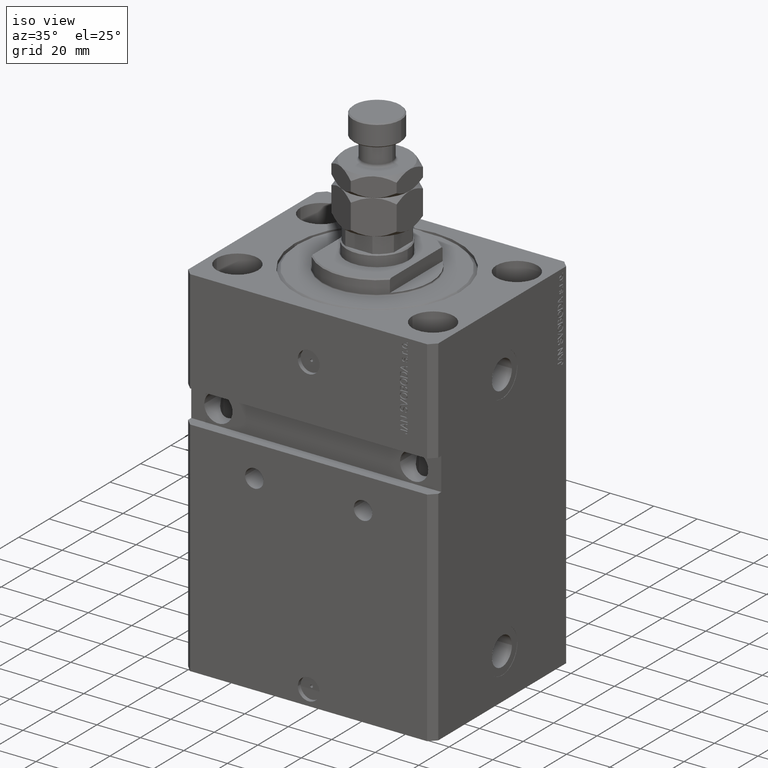
[diagram: clean part render]
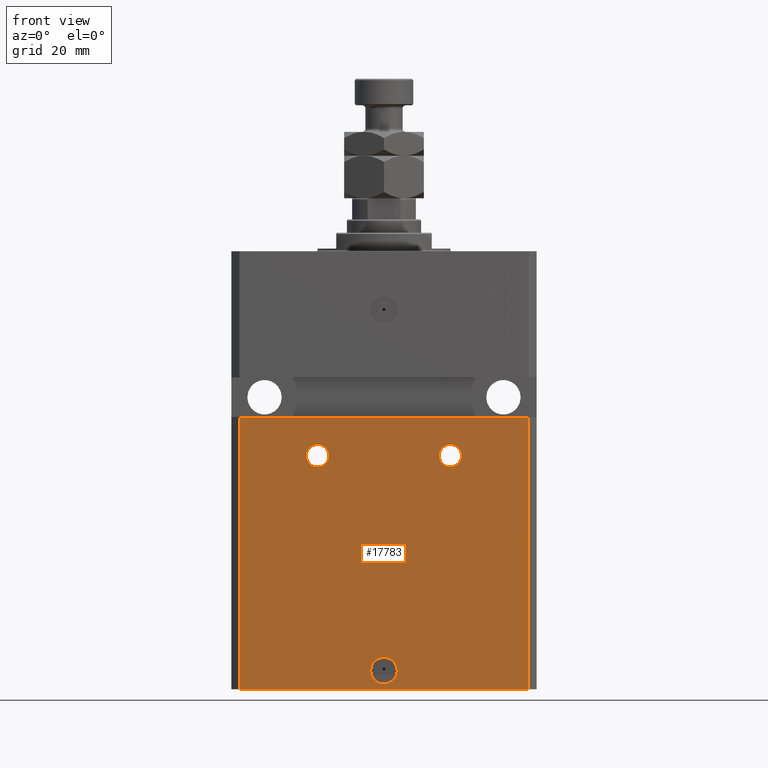
[diagram: tour spotlight — one face highlighted and labeled with its STEP entity id]
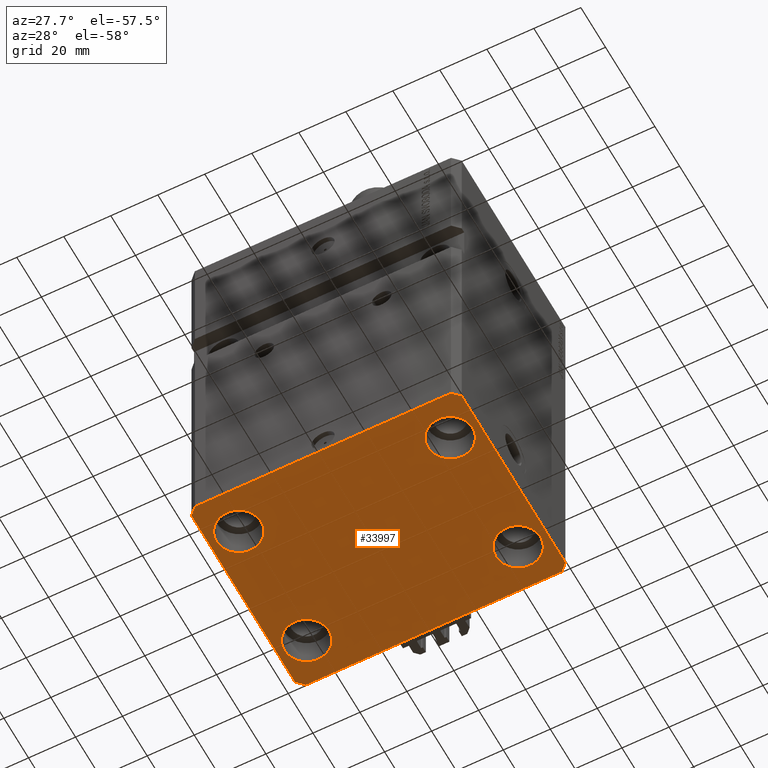
[diagram: tour spotlight — one face highlighted and labeled with its STEP entity id]
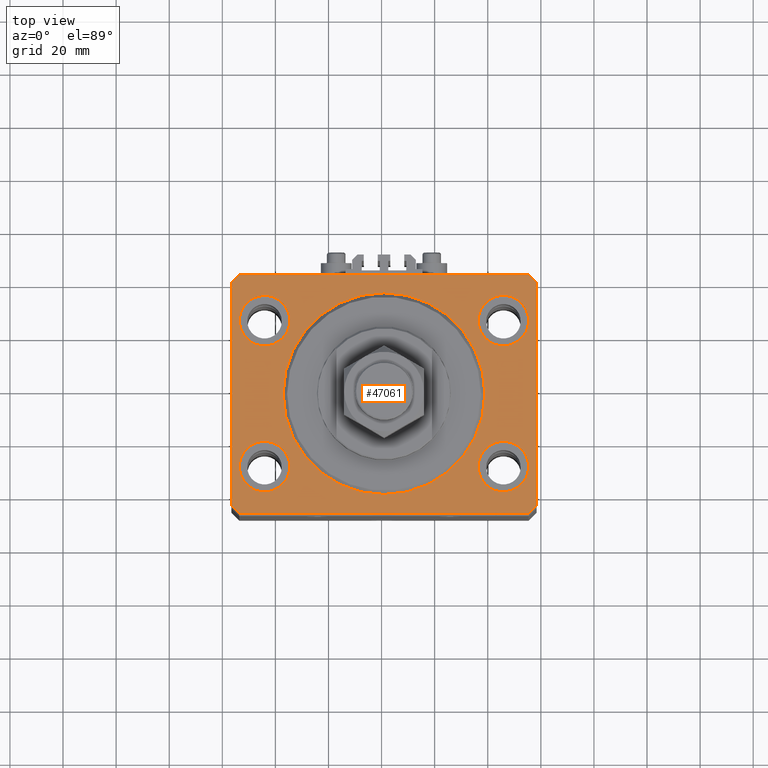
[diagram: tour spotlight — one face highlighted and labeled with its STEP entity id]
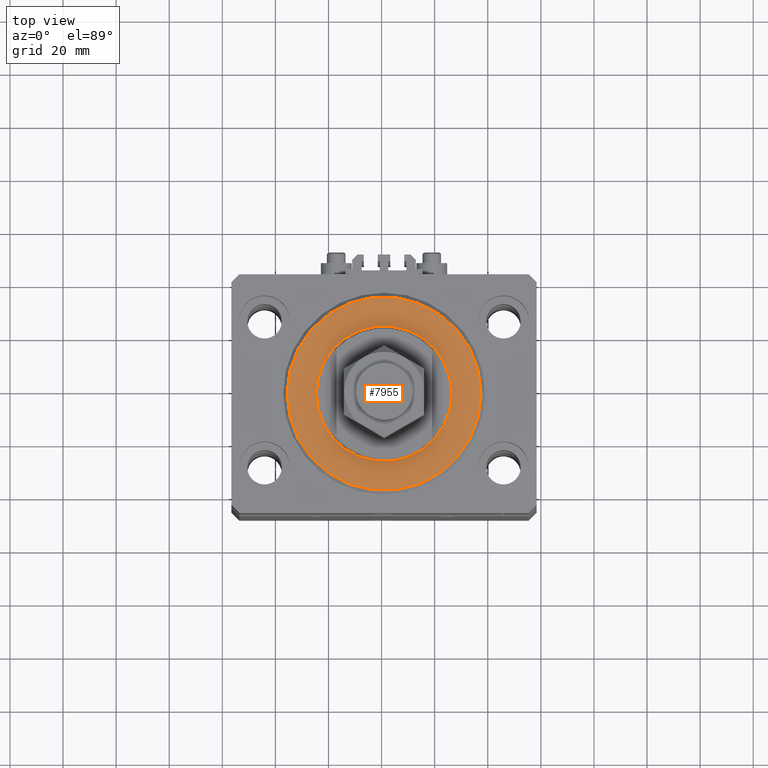
[diagram: tour spotlight — one face highlighted and labeled with its STEP entity id]
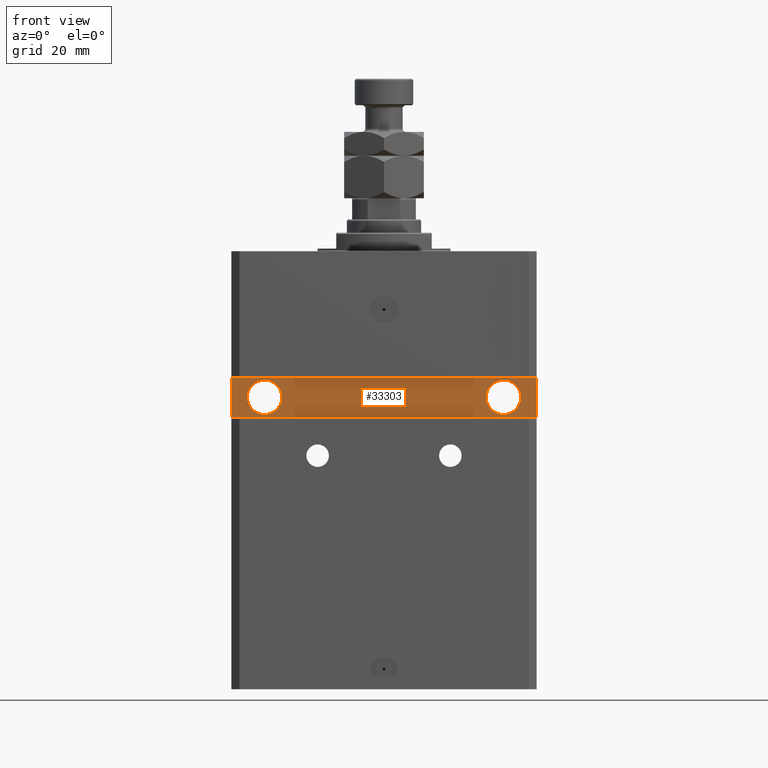
[diagram: tour spotlight — one face highlighted and labeled with its STEP entity id]
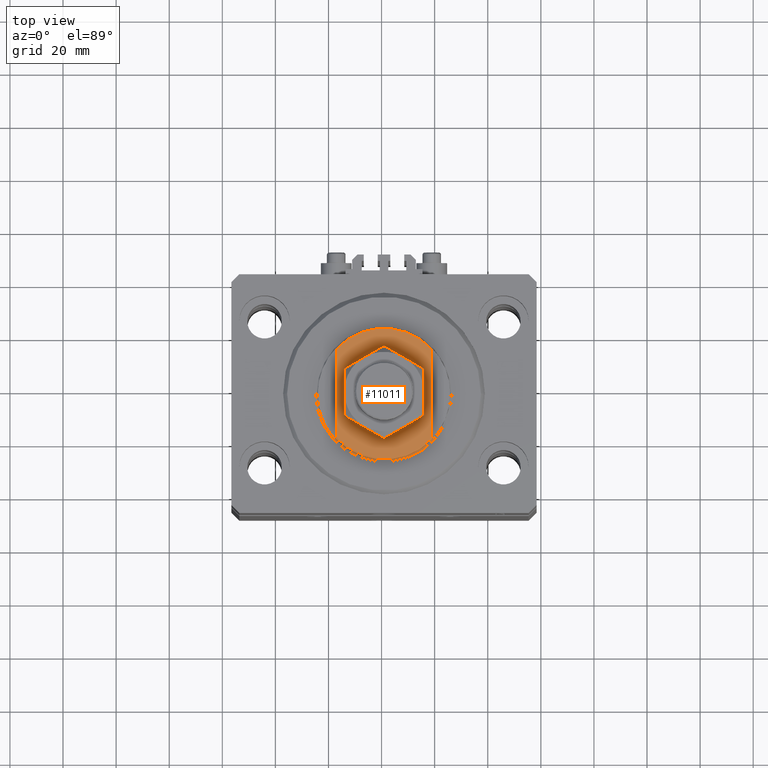
[diagram: tour spotlight — one face highlighted and labeled with its STEP entity id]
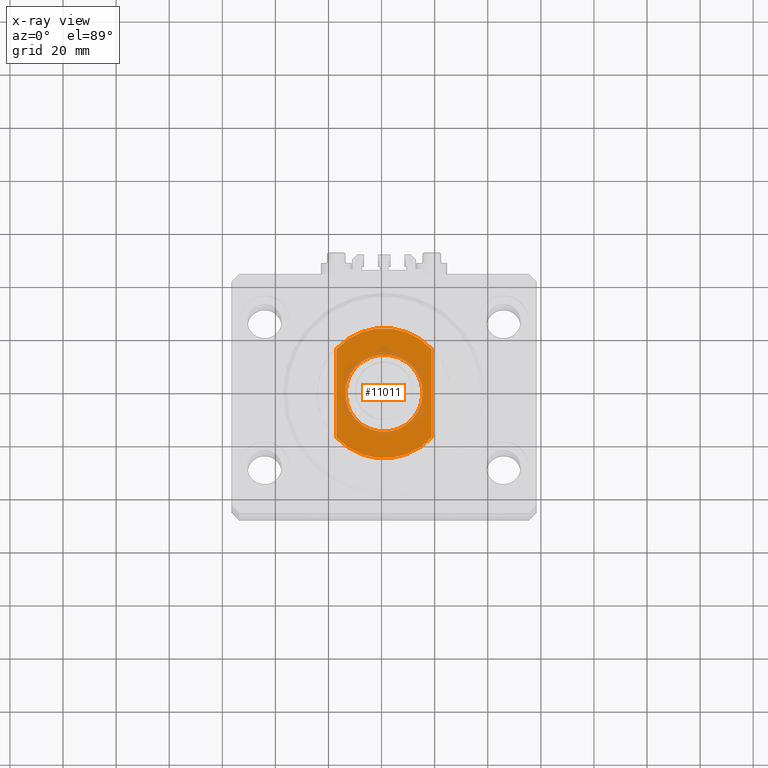
[diagram: x-ray of the same camera — body ghosted, this tour face saturated]
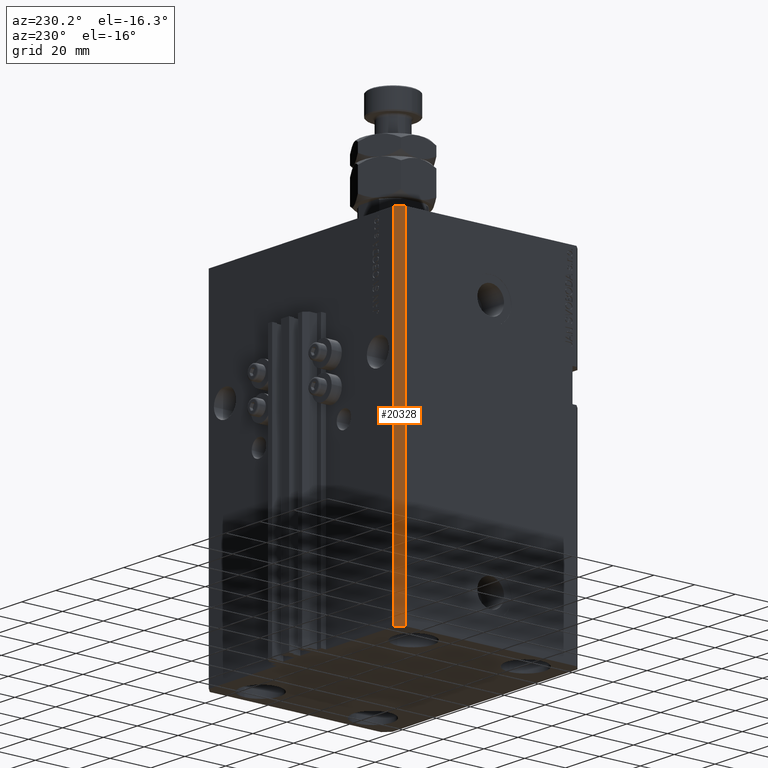
[diagram: tour spotlight — one face highlighted and labeled with its STEP entity id]
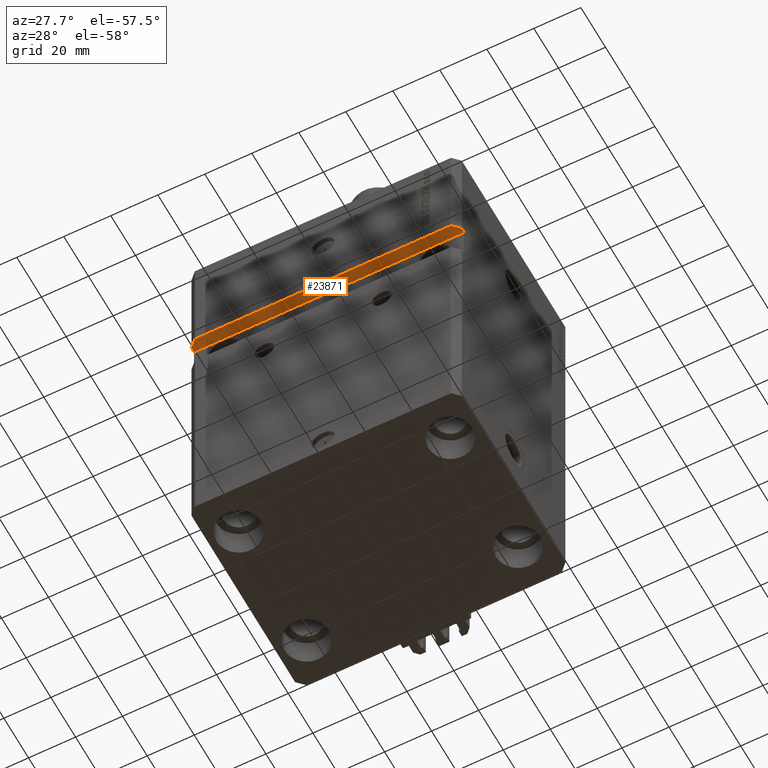
[diagram: tour spotlight — one face highlighted and labeled with its STEP entity id]
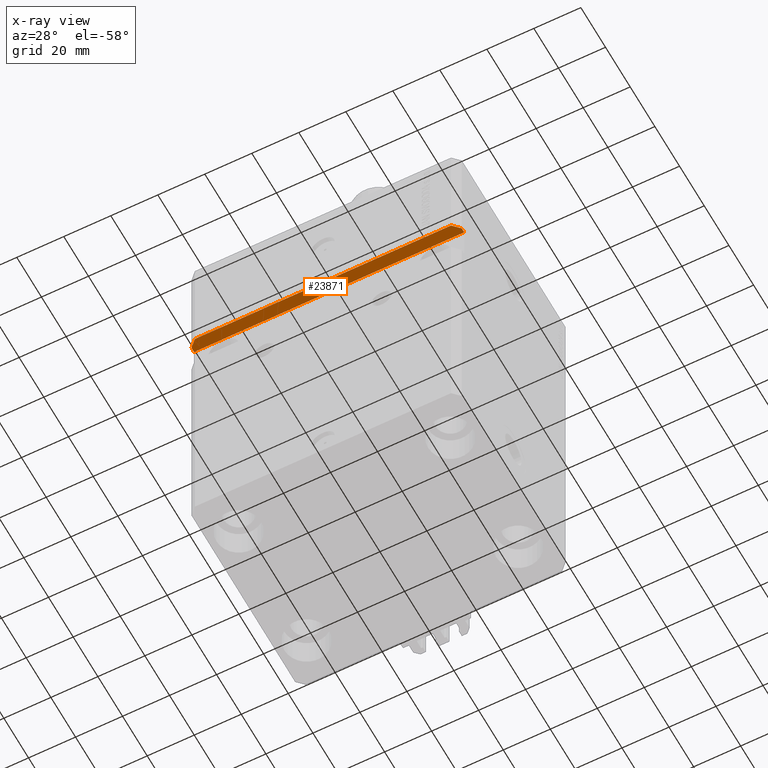
[diagram: x-ray of the same camera — body ghosted, this tour face saturated]
A machine part: a face-by-face anatomy tour. The part has 1183 B-rep faces; the first image is the clean iso view, then the 8 largest visible faces are spotlighted one at a time (largest first), each with its STEP entity span.

Face 1 — front view, entity #17783. In plain terms, the highlighted planar face has unit normal (0, -1, 0).
Definition (entity closure, byte-faithful):
#406 = VERTEX_POINT ( 'NONE', #4055 ) ;
#991 = ORIENTED_EDGE ( 'NONE', *, *, #44096, .F. ) ;
#1726 = AXIS2_PLACEMENT_3D ( 'NONE', #14574, #33849, #6234 ) ;
#2410 = FACE_BOUND ( 'NONE', #8249, .T. ) ;
#2848 = DIRECTION ( 'NONE',  ( -1.000000000000000000, 0.000000000000000000, 0.000000000000000000 ) ) ;
#3180 = FACE_BOUND ( 'NONE', #9917, .T. ) ;
#3184 = CIRCLE ( 'NONE', #8974, 4.249999999982822629 ) ;
#3534 = LINE ( 'NONE', #4311, #4961 ) ;
#4055 = CARTESIAN_POINT ( 'NONE',  ( -5.000000000000000000, -44.99999999999999289, -158.0000000000000000 ) ) ;
#4311 = CARTESIAN_POINT ( 'NONE',  ( -54.50000000000000711, -45.00000000000000000, -165.0000000000000000 ) ) ;
#4526 = LINE ( 'NONE', #5031, #19310 ) ;
#4946 = CARTESIAN_POINT ( 'NONE',  ( -20.75000000002369305, -44.99999999999999289, -76.99999999999998579 ) ) ;
#4961 = VECTOR ( 'NONE', #51413, 1000.000000000000000 ) ;
#4987 = CARTESIAN_POINT ( 'NONE',  ( 54.50000000000000711, -44.99999999999998579, -62.49999999999999289 ) ) ;
#5031 = CARTESIAN_POINT ( 'NONE',  ( -57.50000000000002132, -45.00000000000000000, -62.50000000000000000 ) ) ;
#5041 = CARTESIAN_POINT ( 'NONE',  ( 20.75000000002370726, -44.99999999999999289, -76.99999999999998579 ) ) ;
#5308 = EDGE_CURVE ( 'NONE', #34632, #43216, #50772, .T. ) ;
#5764 = EDGE_CURVE ( 'NONE', #30648, #406, #44254, .T. ) ;
#5839 = EDGE_CURVE ( 'NONE', #43216, #32389, #4526, .T. ) ;
#5976 = CARTESIAN_POINT ( 'NONE',  ( -25.00000000000651568, -44.99999999999999289, -76.99999999999998579 ) ) ;
#6234 = DIRECTION ( 'NONE',  ( 1.000000000000000000, 0.000000000000000000, 0.000000000000000000 ) ) ;
#6843 = AXIS2_PLACEMENT_3D ( 'NONE', #24838, #8430, #13106 ) ;
#8249 = EDGE_LOOP ( 'NONE', ( #991, #38012 ) ) ;
#8430 = DIRECTION ( 'NONE',  ( 1.176083712526788232E-16, -1.000000000000000000, 0.000000000000000000 ) ) ;
#8474 = CARTESIAN_POINT ( 'NONE',  ( 54.50000000000000711, -44.99999999999998579, -165.0000000000000000 ) ) ;
#8974 = AXIS2_PLACEMENT_3D ( 'NONE', #46625, #18548, #23237 ) ;
#9024 = ORIENTED_EDGE ( 'NONE', *, *, #21950, .T. ) ;
#9917 = EDGE_LOOP ( 'NONE', ( #17131, #14744 ) ) ;
#12872 = CARTESIAN_POINT ( 'NONE',  ( 5.000000000000012434, -44.99999999999999289, -158.0000000000000000 ) ) ;
#13106 = DIRECTION ( 'NONE',  ( 1.000000000000000000, 0.000000000000000000, 0.000000000000000000 ) ) ;
#14574 = CARTESIAN_POINT ( 'NONE',  ( 5.729361939005967538E-15, -44.99999999999999289, -158.0000000000000000 ) ) ;
#14648 = FACE_BOUND ( 'NONE', #18069, .T. ) ;
#14744 = ORIENTED_EDGE ( 'NONE', *, *, #49094, .F. ) ;
#14817 = EDGE_CURVE ( 'NONE', #21549, #27093, #3184, .T. ) ;
#14842 = DIRECTION ( 'NONE',  ( 1.176083712526788232E-16, -1.000000000000000000, 0.000000000000000000 ) ) ;
#16529 = DIRECTION ( 'NONE',  ( -1.000000000000000000, 0.000000000000000000, 0.000000000000000000 ) ) ;
#17131 = ORIENTED_EDGE ( 'NONE', *, *, #14817, .F. ) ;
#17783 = ADVANCED_FACE ( 'NONE', ( #14648, #3180, #2410, #42735 ), #38329, .T. ) ;
#18069 = EDGE_LOOP ( 'NONE', ( #48837, #39517 ) ) ;
#18548 = DIRECTION ( 'NONE',  ( 1.176083712526788232E-16, -1.000000000000000000, 0.000000000000000000 ) ) ;
#18589 = CARTESIAN_POINT ( 'NONE',  ( -29.24999999998934186, -44.99999999999999289, -76.99999999999998579 ) ) ;
#19071 = DIRECTION ( 'NONE',  ( 1.273191542001326317E-16, -1.000000000000000000, 0.000000000000000000 ) ) ;
#19310 = VECTOR ( 'NONE', #19911, 1000.000000000000000 ) ;
#19827 = DIRECTION ( 'NONE',  ( 1.000000000000000000, 0.000000000000000000, 0.000000000000000000 ) ) ;
#19876 = EDGE_CURVE ( 'NONE', #42690, #49170, #37332, .T. ) ;
#19911 = DIRECTION ( 'NONE',  ( 1.000000000000000000, 1.206764157201257045E-16, 6.033820786006285224E-17 ) ) ;
#21549 = VERTEX_POINT ( 'NONE', #38485 ) ;
#21928 = DIRECTION ( 'NONE',  ( 0.000000000000000000, 0.000000000000000000, 1.000000000000000000 ) ) ;
#21950 = EDGE_CURVE ( 'NONE', #34632, #23135, #3534, .T. ) ;
#23135 = VERTEX_POINT ( 'NONE', #25128 ) ;
#23237 = DIRECTION ( 'NONE',  ( 1.000000000000000000, 0.000000000000000000, 0.000000000000000000 ) ) ;
#23331 = CIRCLE ( 'NONE', #1726, 5.000000000000006217 ) ;
#23935 = EDGE_CURVE ( 'NONE', #406, #30648, #23331, .T. ) ;
#24838 = CARTESIAN_POINT ( 'NONE',  ( 5.729361939005967538E-15, -44.99999999999999289, -158.0000000000000000 ) ) ;
#24884 = DIRECTION ( 'NONE',  ( 0.000000000000000000, 0.000000000000000000, 1.000000000000000000 ) ) ;
#25128 = CARTESIAN_POINT ( 'NONE',  ( 54.50000000000000711, -44.99999999999998579, -165.0000000000000000 ) ) ;
#25852 = EDGE_LOOP ( 'NONE', ( #26292, #29897, #9024, #29685 ) ) ;
#26292 = ORIENTED_EDGE ( 'NONE', *, *, #5839, .F. ) ;
#27093 = VERTEX_POINT ( 'NONE', #5041 ) ;
#29685 = ORIENTED_EDGE ( 'NONE', *, *, #40007, .T. ) ;
#29897 = ORIENTED_EDGE ( 'NONE', *, *, #5308, .F. ) ;
#30648 = VERTEX_POINT ( 'NONE', #12872 ) ;
#31151 = CARTESIAN_POINT ( 'NONE',  ( -54.50000000000000711, -45.00000000000000000, -62.50000000000000000 ) ) ;
#32389 = VERTEX_POINT ( 'NONE', #4987 ) ;
#33116 = AXIS2_PLACEMENT_3D ( 'NONE', #38842, #19071, #50019 ) ;
#33605 = AXIS2_PLACEMENT_3D ( 'NONE', #39330, #43478, #19827 ) ;
#33849 = DIRECTION ( 'NONE',  ( 1.176083712526788232E-16, -1.000000000000000000, 0.000000000000000000 ) ) ;
#34632 = VERTEX_POINT ( 'NONE', #49620 ) ;
#34646 = AXIS2_PLACEMENT_3D ( 'NONE', #5976, #14842, #2848 ) ;
#34669 = CARTESIAN_POINT ( 'NONE',  ( -54.50000000000000711, -45.00000000000000000, -165.0000000000000000 ) ) ;
#35271 = CIRCLE ( 'NONE', #33605, 4.249999999982822629 ) ;
#37332 = CIRCLE ( 'NONE', #43934, 4.249999999982822629 ) ;
#38012 = ORIENTED_EDGE ( 'NONE', *, *, #19876, .F. ) ;
#38329 = PLANE ( 'NONE',  #33116 ) ;
#38485 = CARTESIAN_POINT ( 'NONE',  ( 29.24999999998935252, -44.99999999999999289, -76.99999999999998579 ) ) ;
#38842 = CARTESIAN_POINT ( 'NONE',  ( -54.50000000000000711, -45.00000000000000000, -165.0000000000000000 ) ) ;
#39330 = CARTESIAN_POINT ( 'NONE',  ( 25.00000000000652989, -44.99999999999999289, -76.99999999999998579 ) ) ;
#39517 = ORIENTED_EDGE ( 'NONE', *, *, #23935, .F. ) ;
#39703 = DIRECTION ( 'NONE',  ( 1.176083712526788232E-16, -1.000000000000000000, 0.000000000000000000 ) ) ;
#40007 = EDGE_CURVE ( 'NONE', #23135, #32389, #44374, .T. ) ;
#40710 = CARTESIAN_POINT ( 'NONE',  ( -25.00000000000651568, -44.99999999999999289, -76.99999999999998579 ) ) ;
#41730 = VECTOR ( 'NONE', #21928, 1000.000000000000000 ) ;
#41955 = VECTOR ( 'NONE', #24884, 1000.000000000000000 ) ;
#42690 = VERTEX_POINT ( 'NONE', #18589 ) ;
#42735 = FACE_OUTER_BOUND ( 'NONE', #25852, .T. ) ;
#43216 = VERTEX_POINT ( 'NONE', #31151 ) ;
#43478 = DIRECTION ( 'NONE',  ( 1.176083712526788232E-16, -1.000000000000000000, 0.000000000000000000 ) ) ;
#43934 = AXIS2_PLACEMENT_3D ( 'NONE', #40710, #39703, #16529 ) ;
#44096 = EDGE_CURVE ( 'NONE', #49170, #42690, #47946, .T. ) ;
#44254 = CIRCLE ( 'NONE', #6843, 5.000000000000006217 ) ;
#44374 = LINE ( 'NONE', #8474, #41955 ) ;
#46625 = CARTESIAN_POINT ( 'NONE',  ( 25.00000000000652989, -44.99999999999999289, -76.99999999999998579 ) ) ;
#47946 = CIRCLE ( 'NONE', #34646, 4.249999999982822629 ) ;
#48837 = ORIENTED_EDGE ( 'NONE', *, *, #5764, .F. ) ;
#49094 = EDGE_CURVE ( 'NONE', #27093, #21549, #35271, .T. ) ;
#49170 = VERTEX_POINT ( 'NONE', #4946 ) ;
#49620 = CARTESIAN_POINT ( 'NONE',  ( -54.50000000000000711, -45.00000000000000000, -165.0000000000000000 ) ) ;
#50019 = DIRECTION ( 'NONE',  ( 1.000000000000000000, 1.273191542001326317E-16, 0.000000000000000000 ) ) ;
#50772 = LINE ( 'NONE', #34669, #41730 ) ;
#51413 = DIRECTION ( 'NONE',  ( 1.000000000000000000, 1.273191542001326317E-16, 0.000000000000000000 ) ) ;

Face 2 — auxiliary view, entity #33997. In plain terms, the highlighted planar face has unit normal (0, 0, 1).
Definition (entity closure, byte-faithful):
#264 = CIRCLE ( 'NONE', #36834, 9.500000000000001776 ) ;
#899 = VERTEX_POINT ( 'NONE', #6020 ) ;
#1388 = CARTESIAN_POINT ( 'NONE',  ( 54.50000000000000000, 27.50000000000001776, -165.0000000000000000 ) ) ;
#1427 = DIRECTION ( 'NONE',  ( -0.000000000000000000, -0.000000000000000000, 1.000000000000000000 ) ) ;
#1879 = FACE_BOUND ( 'NONE', #20391, .T. ) ;
#2501 = VERTEX_POINT ( 'NONE', #26267 ) ;
#2641 = DIRECTION ( 'NONE',  ( 0.7071067811865491270, -0.7071067811865459074, 0.000000000000000000 ) ) ;
#3007 = EDGE_LOOP ( 'NONE', ( #21250, #23842 ) ) ;
#3129 = ORIENTED_EDGE ( 'NONE', *, *, #43944, .T. ) ;
#3534 = LINE ( 'NONE', #4311, #4961 ) ;
#3585 = VECTOR ( 'NONE', #39682, 1000.000000000000000 ) ;
#3763 = DIRECTION ( 'NONE',  ( 1.000000000000000000, 0.000000000000000000, 0.000000000000000000 ) ) ;
#4028 = ORIENTED_EDGE ( 'NONE', *, *, #36555, .T. ) ;
#4311 = CARTESIAN_POINT ( 'NONE',  ( -54.50000000000000711, -45.00000000000000000, -165.0000000000000000 ) ) ;
#4469 = ORIENTED_EDGE ( 'NONE', *, *, #35806, .F. ) ;
#4641 = CARTESIAN_POINT ( 'NONE',  ( -57.49999999999998579, 42.00000000000000711, -165.0000000000000000 ) ) ;
#4716 = DIRECTION ( 'NONE',  ( 1.000000000000000000, 0.000000000000000000, 0.000000000000000000 ) ) ;
#4961 = VECTOR ( 'NONE', #51413, 1000.000000000000000 ) ;
#6018 = EDGE_CURVE ( 'NONE', #44665, #38712, #36764, .T. ) ;
#6020 = CARTESIAN_POINT ( 'NONE',  ( 35.50000000000000000, 27.50000000000001776, -165.0000000000000000 ) ) ;
#6371 = AXIS2_PLACEMENT_3D ( 'NONE', #29832, #41524, #45164 ) ;
#6605 = ORIENTED_EDGE ( 'NONE', *, *, #7871, .T. ) ;
#6917 = CIRCLE ( 'NONE', #39376, 9.500000000000001776 ) ;
#7068 = ORIENTED_EDGE ( 'NONE', *, *, #13005, .F. ) ;
#7143 = ORIENTED_EDGE ( 'NONE', *, *, #16674, .T. ) ;
#7241 = LINE ( 'NONE', #27041, #36263 ) ;
#7455 = CARTESIAN_POINT ( 'NONE',  ( 57.50000000000055422, 41.99999999999997868, -165.0000000000000000 ) ) ;
#7685 = DIRECTION ( 'NONE',  ( -0.7071067811865376918, 0.7071067811865574537, 0.000000000000000000 ) ) ;
#7871 = EDGE_CURVE ( 'NONE', #44208, #13474, #14557, .T. ) ;
#8185 = CARTESIAN_POINT ( 'NONE',  ( 45.00000000000000000, -27.49999999999999645, -165.0000000000000000 ) ) ;
#9377 = DIRECTION ( 'NONE',  ( -0.000000000000000000, -0.000000000000000000, 1.000000000000000000 ) ) ;
#9847 = CARTESIAN_POINT ( 'NONE',  ( -54.50000000000000000, -27.49999999999999645, -165.0000000000000000 ) ) ;
#9945 = CARTESIAN_POINT ( 'NONE',  ( 0.000000000000000000, 0.000000000000000000, -165.0000000000000000 ) ) ;
#11136 = EDGE_CURVE ( 'NONE', #23135, #36373, #46940, .T. ) ;
#11143 = CARTESIAN_POINT ( 'NONE',  ( -54.50000000000000000, 27.50000000000000355, -165.0000000000000000 ) ) ;
#11301 = CARTESIAN_POINT ( 'NONE',  ( 54.50000000000000000, -27.49999999999999645, -165.0000000000000000 ) ) ;
#11795 = EDGE_CURVE ( 'NONE', #899, #35214, #28832, .T. ) ;
#12267 = VECTOR ( 'NONE', #26392, 1000.000000000000000 ) ;
#12446 = ORIENTED_EDGE ( 'NONE', *, *, #12810, .F. ) ;
#12810 = EDGE_CURVE ( 'NONE', #39961, #34207, #50616, .T. ) ;
#13005 = EDGE_CURVE ( 'NONE', #38282, #46139, #41729, .T. ) ;
#13092 = DIRECTION ( 'NONE',  ( 0.000000000000000000, 0.000000000000000000, 1.000000000000000000 ) ) ;
#13344 = LINE ( 'NONE', #41184, #24458 ) ;
#13474 = VERTEX_POINT ( 'NONE', #11143 ) ;
#14124 = ORIENTED_EDGE ( 'NONE', *, *, #46459, .F. ) ;
#14316 = AXIS2_PLACEMENT_3D ( 'NONE', #46624, #50532, #42733 ) ;
#14388 = CARTESIAN_POINT ( 'NONE',  ( -45.00000000000000000, -27.49999999999999645, -165.0000000000000000 ) ) ;
#14557 = CIRCLE ( 'NONE', #40313, 9.500000000000001776 ) ;
#14670 = CARTESIAN_POINT ( 'NONE',  ( -57.49999999999998579, 42.00000000000000711, -165.0000000000000000 ) ) ;
#14965 = CARTESIAN_POINT ( 'NONE',  ( 54.50000000000000711, -44.99999999999998579, -165.0000000000000000 ) ) ;
#15506 = EDGE_LOOP ( 'NONE', ( #46059, #7143 ) ) ;
#15569 = DIRECTION ( 'NONE',  ( 6.443258625056715108E-15, 1.000000000000000000, 0.000000000000000000 ) ) ;
#16338 = CARTESIAN_POINT ( 'NONE',  ( 57.50000000000000711, -41.99999999999998579, -165.0000000000000000 ) ) ;
#16674 = EDGE_CURVE ( 'NONE', #2501, #19035, #31400, .T. ) ;
#16694 = DIRECTION ( 'NONE',  ( -0.000000000000000000, -0.000000000000000000, 1.000000000000000000 ) ) ;
#16936 = CARTESIAN_POINT ( 'NONE',  ( 54.50000000000058975, 45.00000000000002842, -165.0000000000000000 ) ) ;
#17000 = PLANE ( 'NONE',  #19437 ) ;
#17260 = FACE_BOUND ( 'NONE', #28260, .T. ) ;
#19035 = VERTEX_POINT ( 'NONE', #9847 ) ;
#19437 = AXIS2_PLACEMENT_3D ( 'NONE', #9945, #13092, #48984 ) ;
#20391 = EDGE_LOOP ( 'NONE', ( #4028, #6605 ) ) ;
#20717 = ORIENTED_EDGE ( 'NONE', *, *, #11795, .T. ) ;
#21250 = ORIENTED_EDGE ( 'NONE', *, *, #6018, .T. ) ;
#21355 = CIRCLE ( 'NONE', #39635, 9.500000000000001776 ) ;
#21950 = EDGE_CURVE ( 'NONE', #34632, #23135, #3534, .T. ) ;
#22208 = DIRECTION ( 'NONE',  ( -0.000000000000000000, -0.000000000000000000, 1.000000000000000000 ) ) ;
#22268 = LINE ( 'NONE', #23825, #3585 ) ;
#23135 = VERTEX_POINT ( 'NONE', #25128 ) ;
#23767 = CARTESIAN_POINT ( 'NONE',  ( -57.50000000000000711, -42.00000000000000711, -165.0000000000000000 ) ) ;
#23825 = CARTESIAN_POINT ( 'NONE',  ( -54.49999999999999289, 45.00000000000000000, -165.0000000000000000 ) ) ;
#23842 = ORIENTED_EDGE ( 'NONE', *, *, #35824, .T. ) ;
#23928 = CARTESIAN_POINT ( 'NONE',  ( 57.50000000000000711, -41.99999999999998579, -165.0000000000000000 ) ) ;
#24458 = VECTOR ( 'NONE', #2641, 1000.000000000000114 ) ;
#24645 = VECTOR ( 'NONE', #46678, 1000.000000000000000 ) ;
#25128 = CARTESIAN_POINT ( 'NONE',  ( 54.50000000000000711, -44.99999999999998579, -165.0000000000000000 ) ) ;
#26145 = DIRECTION ( 'NONE',  ( 1.000000000000000000, 0.000000000000000000, 0.000000000000000000 ) ) ;
#26267 = CARTESIAN_POINT ( 'NONE',  ( -35.50000000000000000, -27.49999999999999645, -165.0000000000000000 ) ) ;
#26392 = DIRECTION ( 'NONE',  ( -2.478176394252581141E-16, -1.000000000000000000, 0.000000000000000000 ) ) ;
#27041 = CARTESIAN_POINT ( 'NONE',  ( 54.50000000000058975, 45.00000000000002842, -165.0000000000000000 ) ) ;
#28260 = EDGE_LOOP ( 'NONE', ( #20717, #3129 ) ) ;
#28382 = AXIS2_PLACEMENT_3D ( 'NONE', #14388, #22208, #34689 ) ;
#28622 = EDGE_CURVE ( 'NONE', #19035, #2501, #46651, .T. ) ;
#28832 = CIRCLE ( 'NONE', #6371, 9.500000000000001776 ) ;
#29832 = CARTESIAN_POINT ( 'NONE',  ( 45.00000000000000000, 27.50000000000001776, -165.0000000000000000 ) ) ;
#30383 = VERTEX_POINT ( 'NONE', #50617 ) ;
#30908 = CARTESIAN_POINT ( 'NONE',  ( 35.50000000000000000, -27.49999999999999645, -165.0000000000000000 ) ) ;
#31400 = CIRCLE ( 'NONE', #46301, 9.500000000000001776 ) ;
#31632 = DIRECTION ( 'NONE',  ( -0.000000000000000000, -0.000000000000000000, 1.000000000000000000 ) ) ;
#31966 = LINE ( 'NONE', #16338, #34453 ) ;
#32077 = CARTESIAN_POINT ( 'NONE',  ( 45.00000000000000000, 27.50000000000001776, -165.0000000000000000 ) ) ;
#32581 = DIRECTION ( 'NONE',  ( 1.000000000000000000, 0.000000000000000000, 0.000000000000000000 ) ) ;
#32721 = DIRECTION ( 'NONE',  ( -0.000000000000000000, -0.000000000000000000, 1.000000000000000000 ) ) ;
#33997 = ADVANCED_FACE ( 'NONE', ( #37543, #36779, #17260, #1879, #49491 ), #17000, .F. ) ;
#34012 = EDGE_CURVE ( 'NONE', #46139, #34632, #13344, .T. ) ;
#34201 = CARTESIAN_POINT ( 'NONE',  ( -45.00000000000000000, 27.50000000000000355, -165.0000000000000000 ) ) ;
#34207 = VERTEX_POINT ( 'NONE', #16936 ) ;
#34453 = VECTOR ( 'NONE', #15569, 1000.000000000000000 ) ;
#34632 = VERTEX_POINT ( 'NONE', #49620 ) ;
#34689 = DIRECTION ( 'NONE',  ( 1.000000000000000000, 0.000000000000000000, 0.000000000000000000 ) ) ;
#35214 = VERTEX_POINT ( 'NONE', #1388 ) ;
#35806 = EDGE_CURVE ( 'NONE', #30383, #38282, #22268, .T. ) ;
#35824 = EDGE_CURVE ( 'NONE', #38712, #44665, #264, .T. ) ;
#36263 = VECTOR ( 'NONE', #39000, 1000.000000000000000 ) ;
#36373 = VERTEX_POINT ( 'NONE', #23928 ) ;
#36555 = EDGE_CURVE ( 'NONE', #13474, #44208, #6917, .T. ) ;
#36764 = CIRCLE ( 'NONE', #14316, 9.500000000000001776 ) ;
#36779 = FACE_BOUND ( 'NONE', #3007, .T. ) ;
#36834 = AXIS2_PLACEMENT_3D ( 'NONE', #8185, #31632, #3763 ) ;
#37543 = FACE_BOUND ( 'NONE', #15506, .T. ) ;
#37634 = CARTESIAN_POINT ( 'NONE',  ( -45.00000000000000000, 27.50000000000000355, -165.0000000000000000 ) ) ;
#38282 = VERTEX_POINT ( 'NONE', #4641 ) ;
#38712 = VERTEX_POINT ( 'NONE', #11301 ) ;
#38781 = ORIENTED_EDGE ( 'NONE', *, *, #21950, .F. ) ;
#38814 = VECTOR ( 'NONE', #7685, 999.9999999999998863 ) ;
#39000 = DIRECTION ( 'NONE',  ( -1.000000000000000000, -2.546383084002639322E-16, 0.000000000000000000 ) ) ;
#39376 = AXIS2_PLACEMENT_3D ( 'NONE', #34201, #1427, #26145 ) ;
#39446 = CARTESIAN_POINT ( 'NONE',  ( 57.50000000000055422, 41.99999999999997868, -165.0000000000000000 ) ) ;
#39635 = AXIS2_PLACEMENT_3D ( 'NONE', #32077, #16694, #4716 ) ;
#39682 = DIRECTION ( 'NONE',  ( -0.7071067811865483499, -0.7071067811865466846, 0.000000000000000000 ) ) ;
#39961 = VERTEX_POINT ( 'NONE', #7455 ) ;
#40313 = AXIS2_PLACEMENT_3D ( 'NONE', #37634, #32721, #48567 ) ;
#40372 = CARTESIAN_POINT ( 'NONE',  ( -45.00000000000000000, -27.49999999999999645, -165.0000000000000000 ) ) ;
#41184 = CARTESIAN_POINT ( 'NONE',  ( -57.50000000000000711, -42.00000000000000711, -165.0000000000000000 ) ) ;
#41524 = DIRECTION ( 'NONE',  ( -0.000000000000000000, -0.000000000000000000, 1.000000000000000000 ) ) ;
#41626 = ORIENTED_EDGE ( 'NONE', *, *, #11136, .F. ) ;
#41729 = LINE ( 'NONE', #14670, #12267 ) ;
#42054 = EDGE_CURVE ( 'NONE', #34207, #30383, #7241, .T. ) ;
#42733 = DIRECTION ( 'NONE',  ( 1.000000000000000000, 0.000000000000000000, 0.000000000000000000 ) ) ;
#43471 = ORIENTED_EDGE ( 'NONE', *, *, #34012, .F. ) ;
#43944 = EDGE_CURVE ( 'NONE', #35214, #899, #21355, .T. ) ;
#44208 = VERTEX_POINT ( 'NONE', #45217 ) ;
#44665 = VERTEX_POINT ( 'NONE', #30908 ) ;
#45164 = DIRECTION ( 'NONE',  ( 1.000000000000000000, 0.000000000000000000, 0.000000000000000000 ) ) ;
#45217 = CARTESIAN_POINT ( 'NONE',  ( -35.50000000000000000, 27.50000000000000355, -165.0000000000000000 ) ) ;
#46059 = ORIENTED_EDGE ( 'NONE', *, *, #28622, .T. ) ;
#46139 = VERTEX_POINT ( 'NONE', #23767 ) ;
#46301 = AXIS2_PLACEMENT_3D ( 'NONE', #40372, #9377, #32581 ) ;
#46459 = EDGE_CURVE ( 'NONE', #36373, #39961, #31966, .T. ) ;
#46624 = CARTESIAN_POINT ( 'NONE',  ( 45.00000000000000000, -27.49999999999999645, -165.0000000000000000 ) ) ;
#46651 = CIRCLE ( 'NONE', #28382, 9.500000000000001776 ) ;
#46678 = DIRECTION ( 'NONE',  ( 0.7071067811865483499, 0.7071067811865466846, 0.000000000000000000 ) ) ;
#46940 = LINE ( 'NONE', #14965, #24645 ) ;
#47135 = ORIENTED_EDGE ( 'NONE', *, *, #42054, .F. ) ;
#48567 = DIRECTION ( 'NONE',  ( 1.000000000000000000, 0.000000000000000000, 0.000000000000000000 ) ) ;
#48984 = DIRECTION ( 'NONE',  ( 1.000000000000000000, 0.000000000000000000, -0.000000000000000000 ) ) ;
#49491 = FACE_OUTER_BOUND ( 'NONE', #49839, .T. ) ;
#49620 = CARTESIAN_POINT ( 'NONE',  ( -54.50000000000000711, -45.00000000000000000, -165.0000000000000000 ) ) ;
#49839 = EDGE_LOOP ( 'NONE', ( #47135, #12446, #14124, #41626, #38781, #43471, #7068, #4469 ) ) ;
#50532 = DIRECTION ( 'NONE',  ( -0.000000000000000000, -0.000000000000000000, 1.000000000000000000 ) ) ;
#50616 = LINE ( 'NONE', #39446, #38814 ) ;
#50617 = CARTESIAN_POINT ( 'NONE',  ( -54.49999999999999289, 45.00000000000000000, -165.0000000000000000 ) ) ;
#51413 = DIRECTION ( 'NONE',  ( 1.000000000000000000, 1.273191542001326317E-16, 0.000000000000000000 ) ) ;

Face 3 — top view, entity #47061. In plain terms, the highlighted planar face has unit normal (0, 0, 1).
Definition (entity closure, byte-faithful):
#862 = EDGE_CURVE ( 'NONE', #1778, #24037, #29473, .T. ) ;
#1106 = ORIENTED_EDGE ( 'NONE', *, *, #41703, .T. ) ;
#1520 = LINE ( 'NONE', #24959, #35060 ) ;
#1546 = DIRECTION ( 'NONE',  ( 1.000000000000000000, 0.000000000000000000, 0.000000000000000000 ) ) ;
#1778 = VERTEX_POINT ( 'NONE', #22446 ) ;
#2070 = VERTEX_POINT ( 'NONE', #48348 ) ;
#2959 = EDGE_LOOP ( 'NONE', ( #19760, #4810 ) ) ;
#3505 = DIRECTION ( 'NONE',  ( 0.7071067811865491270, -0.7071067811865459074, 0.000000000000000000 ) ) ;
#4030 = EDGE_CURVE ( 'NONE', #29594, #38672, #8331, .T. ) ;
#4599 = CARTESIAN_POINT ( 'NONE',  ( -54.49999999999999289, 45.00000000000000000, 0.000000000000000000 ) ) ;
#4802 = CARTESIAN_POINT ( 'NONE',  ( -54.49999999999999289, 45.00000000000000000, 0.000000000000000000 ) ) ;
#4810 = ORIENTED_EDGE ( 'NONE', *, *, #4030, .F. ) ;
#5302 = CIRCLE ( 'NONE', #23647, 9.500000000000001776 ) ;
#5587 = AXIS2_PLACEMENT_3D ( 'NONE', #39222, #46245, #39486 ) ;
#6053 = CARTESIAN_POINT ( 'NONE',  ( -57.49999999999998579, 42.00000000000000711, 0.000000000000000000 ) ) ;
#6134 = EDGE_CURVE ( 'NONE', #16301, #25726, #9899, .T. ) ;
#6603 = DIRECTION ( 'NONE',  ( -1.000000000000000000, -2.546383084002639322E-16, 0.000000000000000000 ) ) ;
#6859 = CARTESIAN_POINT ( 'NONE',  ( 54.50000000000058975, 45.00000000000002842, 0.000000000000000000 ) ) ;
#7028 = AXIS2_PLACEMENT_3D ( 'NONE', #20989, #29056, #17337 ) ;
#7396 = CARTESIAN_POINT ( 'NONE',  ( 38.00000000000000000, 0.000000000000000000, 0.000000000000000000 ) ) ;
#7495 = DIRECTION ( 'NONE',  ( 0.7071067811865483499, 0.7071067811865466846, 0.000000000000000000 ) ) ;
#7892 = AXIS2_PLACEMENT_3D ( 'NONE', #15440, #47165, #19873 ) ;
#8331 = CIRCLE ( 'NONE', #13304, 38.00000000000000000 ) ;
#9007 = DIRECTION ( 'NONE',  ( -0.7071067811865483499, -0.7071067811865466846, 0.000000000000000000 ) ) ;
#9205 = ORIENTED_EDGE ( 'NONE', *, *, #20490, .F. ) ;
#9318 = CARTESIAN_POINT ( 'NONE',  ( 54.50000000000058975, 45.00000000000002842, 0.000000000000000000 ) ) ;
#9798 = CARTESIAN_POINT ( 'NONE',  ( 54.50000000000000000, 27.50000000000001776, 0.000000000000000000 ) ) ;
#9899 = LINE ( 'NONE', #17720, #22813 ) ;
#10056 = EDGE_CURVE ( 'NONE', #24037, #17144, #27767, .T. ) ;
#11308 = VECTOR ( 'NONE', #9007, 1000.000000000000000 ) ;
#11432 = CIRCLE ( 'NONE', #5587, 9.500000000000001776 ) ;
#11530 = ORIENTED_EDGE ( 'NONE', *, *, #31928, .T. ) ;
#12418 = LINE ( 'NONE', #4599, #11308 ) ;
#12881 = DIRECTION ( 'NONE',  ( 0.000000000000000000, 0.000000000000000000, 1.000000000000000000 ) ) ;
#12898 = CARTESIAN_POINT ( 'NONE',  ( 54.50000000000000711, -44.99999999999998579, 0.000000000000000000 ) ) ;
#13243 = DIRECTION ( 'NONE',  ( 0.000000000000000000, 0.000000000000000000, 1.000000000000000000 ) ) ;
#13304 = AXIS2_PLACEMENT_3D ( 'NONE', #44879, #12881, #25887 ) ;
#13492 = EDGE_CURVE ( 'NONE', #25726, #1778, #38733, .T. ) ;
#14540 = CARTESIAN_POINT ( 'NONE',  ( 54.50000000000000711, -44.99999999999998579, 0.000000000000000000 ) ) ;
#14725 = ORIENTED_EDGE ( 'NONE', *, *, #45845, .F. ) ;
#14761 = DIRECTION ( 'NONE',  ( 1.000000000000000000, 0.000000000000000000, 0.000000000000000000 ) ) ;
#15102 = DIRECTION ( 'NONE',  ( 1.000000000000000000, 0.000000000000000000, 0.000000000000000000 ) ) ;
#15440 = CARTESIAN_POINT ( 'NONE',  ( 0.000000000000000000, 0.000000000000000000, 0.000000000000000000 ) ) ;
#15499 = LINE ( 'NONE', #31380, #19491 ) ;
#16301 = VERTEX_POINT ( 'NONE', #19484 ) ;
#16988 = VERTEX_POINT ( 'NONE', #28106 ) ;
#17144 = VERTEX_POINT ( 'NONE', #9318 ) ;
#17203 = EDGE_CURVE ( 'NONE', #2070, #21712, #11432, .T. ) ;
#17337 = DIRECTION ( 'NONE',  ( 1.000000000000000000, 0.000000000000000000, 0.000000000000000000 ) ) ;
#17373 = CIRCLE ( 'NONE', #40632, 9.500000000000001776 ) ;
#17587 = AXIS2_PLACEMENT_3D ( 'NONE', #20809, #13243, #48627 ) ;
#17680 = ORIENTED_EDGE ( 'NONE', *, *, #26178, .T. ) ;
#17720 = CARTESIAN_POINT ( 'NONE',  ( -54.50000000000000711, -45.00000000000000000, 0.000000000000000000 ) ) ;
#17752 = ORIENTED_EDGE ( 'NONE', *, *, #29142, .F. ) ;
#17884 = ORIENTED_EDGE ( 'NONE', *, *, #33794, .F. ) ;
#19484 = CARTESIAN_POINT ( 'NONE',  ( -54.50000000000000711, -45.00000000000000000, 0.000000000000000000 ) ) ;
#19491 = VECTOR ( 'NONE', #3505, 1000.000000000000114 ) ;
#19659 = CIRCLE ( 'NONE', #48715, 9.500000000000001776 ) ;
#19669 = ORIENTED_EDGE ( 'NONE', *, *, #31617, .F. ) ;
#19760 = ORIENTED_EDGE ( 'NONE', *, *, #45125, .F. ) ;
#19873 = DIRECTION ( 'NONE',  ( 1.000000000000000000, 0.000000000000000000, -0.000000000000000000 ) ) ;
#20490 = EDGE_CURVE ( 'NONE', #32666, #33376, #17373, .T. ) ;
#20706 = VECTOR ( 'NONE', #33631, 1000.000000000000000 ) ;
#20809 = CARTESIAN_POINT ( 'NONE',  ( 45.00000000000000000, 27.50000000000001776, 0.000000000000000000 ) ) ;
#20853 = EDGE_CURVE ( 'NONE', #33376, #32666, #22404, .T. ) ;
#20989 = CARTESIAN_POINT ( 'NONE',  ( -45.00000000000000000, 27.50000000000000355, 0.000000000000000000 ) ) ;
#21075 = ORIENTED_EDGE ( 'NONE', *, *, #42980, .F. ) ;
#21122 = DIRECTION ( 'NONE',  ( 1.000000000000000000, 1.273191542001326317E-16, 0.000000000000000000 ) ) ;
#21712 = VERTEX_POINT ( 'NONE', #9798 ) ;
#22134 = CARTESIAN_POINT ( 'NONE',  ( -54.50000000000000000, -27.49999999999999645, 0.000000000000000000 ) ) ;
#22376 = EDGE_CURVE ( 'NONE', #17144, #32083, #46411, .T. ) ;
#22404 = CIRCLE ( 'NONE', #48139, 9.500000000000001776 ) ;
#22446 = CARTESIAN_POINT ( 'NONE',  ( 57.50000000000000711, -41.99999999999998579, 0.000000000000000000 ) ) ;
#22813 = VECTOR ( 'NONE', #21122, 1000.000000000000000 ) ;
#23218 = CARTESIAN_POINT ( 'NONE',  ( -45.00000000000000000, 27.50000000000000355, 0.000000000000000000 ) ) ;
#23398 = CIRCLE ( 'NONE', #17587, 9.500000000000001776 ) ;
#23647 = AXIS2_PLACEMENT_3D ( 'NONE', #42676, #27082, #15102 ) ;
#24016 = VERTEX_POINT ( 'NONE', #22134 ) ;
#24037 = VERTEX_POINT ( 'NONE', #34608 ) ;
#24163 = DIRECTION ( 'NONE',  ( 0.000000000000000000, 0.000000000000000000, 1.000000000000000000 ) ) ;
#24959 = CARTESIAN_POINT ( 'NONE',  ( -57.49999999999998579, 42.00000000000000711, 0.000000000000000000 ) ) ;
#25178 = CIRCLE ( 'NONE', #42629, 38.00000000000000000 ) ;
#25209 = DIRECTION ( 'NONE',  ( -2.478176394252581141E-16, -1.000000000000000000, 0.000000000000000000 ) ) ;
#25726 = VERTEX_POINT ( 'NONE', #12898 ) ;
#25887 = DIRECTION ( 'NONE',  ( 1.000000000000000000, 0.000000000000000000, 0.000000000000000000 ) ) ;
#26048 = ORIENTED_EDGE ( 'NONE', *, *, #862, .T. ) ;
#26178 = EDGE_CURVE ( 'NONE', #31299, #16988, #1520, .T. ) ;
#26890 = FACE_OUTER_BOUND ( 'NONE', #41257, .T. ) ;
#27082 = DIRECTION ( 'NONE',  ( 0.000000000000000000, 0.000000000000000000, 1.000000000000000000 ) ) ;
#27178 = EDGE_LOOP ( 'NONE', ( #9205, #31349 ) ) ;
#27670 = PLANE ( 'NONE',  #7892 ) ;
#27767 = LINE ( 'NONE', #43875, #28764 ) ;
#28106 = CARTESIAN_POINT ( 'NONE',  ( -57.50000000000000711, -42.00000000000000711, 0.000000000000000000 ) ) ;
#28173 = DIRECTION ( 'NONE',  ( 0.000000000000000000, 0.000000000000000000, 1.000000000000000000 ) ) ;
#28694 = CARTESIAN_POINT ( 'NONE',  ( -38.00000000000000000, 4.653657836759941941E-15, 0.000000000000000000 ) ) ;
#28764 = VECTOR ( 'NONE', #31673, 999.9999999999998863 ) ;
#28788 = EDGE_LOOP ( 'NONE', ( #19669, #17884 ) ) ;
#28885 = CARTESIAN_POINT ( 'NONE',  ( 54.50000000000000000, -27.49999999999999645, 0.000000000000000000 ) ) ;
#28961 = EDGE_LOOP ( 'NONE', ( #21075, #14725 ) ) ;
#29056 = DIRECTION ( 'NONE',  ( 0.000000000000000000, 0.000000000000000000, 1.000000000000000000 ) ) ;
#29142 = EDGE_CURVE ( 'NONE', #21712, #2070, #23398, .T. ) ;
#29473 = LINE ( 'NONE', #49731, #20706 ) ;
#29594 = VERTEX_POINT ( 'NONE', #28694 ) ;
#29603 = CARTESIAN_POINT ( 'NONE',  ( -45.00000000000000000, -27.49999999999999645, 0.000000000000000000 ) ) ;
#31264 = CARTESIAN_POINT ( 'NONE',  ( 35.50000000000000000, -27.49999999999999645, 0.000000000000000000 ) ) ;
#31299 = VERTEX_POINT ( 'NONE', #6053 ) ;
#31349 = ORIENTED_EDGE ( 'NONE', *, *, #20853, .F. ) ;
#31380 = CARTESIAN_POINT ( 'NONE',  ( -57.50000000000000711, -42.00000000000000711, 0.000000000000000000 ) ) ;
#31617 = EDGE_CURVE ( 'NONE', #41357, #24016, #5302, .T. ) ;
#31673 = DIRECTION ( 'NONE',  ( -0.7071067811865376918, 0.7071067811865574537, 0.000000000000000000 ) ) ;
#31817 = CARTESIAN_POINT ( 'NONE',  ( 0.000000000000000000, 0.000000000000000000, 0.000000000000000000 ) ) ;
#31928 = EDGE_CURVE ( 'NONE', #16988, #16301, #15499, .T. ) ;
#32083 = VERTEX_POINT ( 'NONE', #4802 ) ;
#32666 = VERTEX_POINT ( 'NONE', #28885 ) ;
#33061 = CARTESIAN_POINT ( 'NONE',  ( 45.00000000000000000, -27.49999999999999645, 0.000000000000000000 ) ) ;
#33376 = VERTEX_POINT ( 'NONE', #31264 ) ;
#33576 = AXIS2_PLACEMENT_3D ( 'NONE', #29603, #45960, #14761 ) ;
#33631 = DIRECTION ( 'NONE',  ( 6.443258625056715108E-15, 1.000000000000000000, 0.000000000000000000 ) ) ;
#33794 = EDGE_CURVE ( 'NONE', #24016, #41357, #43527, .T. ) ;
#34467 = CARTESIAN_POINT ( 'NONE',  ( -54.50000000000000000, 27.50000000000000355, 0.000000000000000000 ) ) ;
#34608 = CARTESIAN_POINT ( 'NONE',  ( 57.50000000000055422, 41.99999999999997868, 0.000000000000000000 ) ) ;
#35060 = VECTOR ( 'NONE', #25209, 1000.000000000000000 ) ;
#35211 = FACE_BOUND ( 'NONE', #27178, .T. ) ;
#35741 = FACE_BOUND ( 'NONE', #28961, .T. ) ;
#35992 = FACE_BOUND ( 'NONE', #49547, .T. ) ;
#36511 = ORIENTED_EDGE ( 'NONE', *, *, #10056, .T. ) ;
#37832 = VERTEX_POINT ( 'NONE', #34467 ) ;
#38330 = CARTESIAN_POINT ( 'NONE',  ( -35.50000000000000000, -27.49999999999999645, 0.000000000000000000 ) ) ;
#38672 = VERTEX_POINT ( 'NONE', #7396 ) ;
#38733 = LINE ( 'NONE', #14540, #43865 ) ;
#39222 = CARTESIAN_POINT ( 'NONE',  ( 45.00000000000000000, 27.50000000000001776, 0.000000000000000000 ) ) ;
#39486 = DIRECTION ( 'NONE',  ( 1.000000000000000000, 0.000000000000000000, 0.000000000000000000 ) ) ;
#40017 = DIRECTION ( 'NONE',  ( 1.000000000000000000, 0.000000000000000000, 0.000000000000000000 ) ) ;
#40576 = ORIENTED_EDGE ( 'NONE', *, *, #6134, .T. ) ;
#40632 = AXIS2_PLACEMENT_3D ( 'NONE', #33061, #44484, #1546 ) ;
#40819 = VERTEX_POINT ( 'NONE', #46179 ) ;
#41257 = EDGE_LOOP ( 'NONE', ( #47304, #1106, #17680, #11530, #40576, #41606, #26048, #36511 ) ) ;
#41357 = VERTEX_POINT ( 'NONE', #38330 ) ;
#41606 = ORIENTED_EDGE ( 'NONE', *, *, #13492, .T. ) ;
#41703 = EDGE_CURVE ( 'NONE', #32083, #31299, #12418, .T. ) ;
#42373 = VECTOR ( 'NONE', #6603, 1000.000000000000000 ) ;
#42629 = AXIS2_PLACEMENT_3D ( 'NONE', #31817, #28173, #43505 ) ;
#42676 = CARTESIAN_POINT ( 'NONE',  ( -45.00000000000000000, -27.49999999999999645, 0.000000000000000000 ) ) ;
#42980 = EDGE_CURVE ( 'NONE', #40819, #37832, #19659, .T. ) ;
#43268 = FACE_BOUND ( 'NONE', #28788, .T. ) ;
#43505 = DIRECTION ( 'NONE',  ( 1.000000000000000000, 0.000000000000000000, 0.000000000000000000 ) ) ;
#43527 = CIRCLE ( 'NONE', #33576, 9.500000000000001776 ) ;
#43865 = VECTOR ( 'NONE', #7495, 1000.000000000000000 ) ;
#43875 = CARTESIAN_POINT ( 'NONE',  ( 57.50000000000055422, 41.99999999999997868, 0.000000000000000000 ) ) ;
#43940 = DIRECTION ( 'NONE',  ( 0.000000000000000000, 0.000000000000000000, 1.000000000000000000 ) ) ;
#44484 = DIRECTION ( 'NONE',  ( 0.000000000000000000, 0.000000000000000000, 1.000000000000000000 ) ) ;
#44879 = CARTESIAN_POINT ( 'NONE',  ( 0.000000000000000000, 0.000000000000000000, 0.000000000000000000 ) ) ;
#45125 = EDGE_CURVE ( 'NONE', #38672, #29594, #25178, .T. ) ;
#45845 = EDGE_CURVE ( 'NONE', #37832, #40819, #47753, .T. ) ;
#45960 = DIRECTION ( 'NONE',  ( 0.000000000000000000, 0.000000000000000000, 1.000000000000000000 ) ) ;
#46179 = CARTESIAN_POINT ( 'NONE',  ( -35.50000000000000000, 27.50000000000000355, 0.000000000000000000 ) ) ;
#46245 = DIRECTION ( 'NONE',  ( 0.000000000000000000, 0.000000000000000000, 1.000000000000000000 ) ) ;
#46411 = LINE ( 'NONE', #6859, #42373 ) ;
#47061 = ADVANCED_FACE ( 'NONE', ( #43268, #35211, #35992, #35741, #51329, #26890 ), #27670, .T. ) ;
#47165 = DIRECTION ( 'NONE',  ( 0.000000000000000000, 0.000000000000000000, 1.000000000000000000 ) ) ;
#47304 = ORIENTED_EDGE ( 'NONE', *, *, #22376, .T. ) ;
#47753 = CIRCLE ( 'NONE', #7028, 9.500000000000001776 ) ;
#48139 = AXIS2_PLACEMENT_3D ( 'NONE', #51211, #24163, #40017 ) ;
#48348 = CARTESIAN_POINT ( 'NONE',  ( 35.50000000000000000, 27.50000000000001776, 0.000000000000000000 ) ) ;
#48627 = DIRECTION ( 'NONE',  ( 1.000000000000000000, 0.000000000000000000, 0.000000000000000000 ) ) ;
#48715 = AXIS2_PLACEMENT_3D ( 'NONE', #23218, #43940, #48849 ) ;
#48849 = DIRECTION ( 'NONE',  ( 1.000000000000000000, 0.000000000000000000, 0.000000000000000000 ) ) ;
#48896 = ORIENTED_EDGE ( 'NONE', *, *, #17203, .F. ) ;
#49547 = EDGE_LOOP ( 'NONE', ( #17752, #48896 ) ) ;
#49731 = CARTESIAN_POINT ( 'NONE',  ( 57.50000000000000711, -41.99999999999998579, 0.000000000000000000 ) ) ;
#51211 = CARTESIAN_POINT ( 'NONE',  ( 45.00000000000000000, -27.49999999999999645, 0.000000000000000000 ) ) ;
#51329 = FACE_BOUND ( 'NONE', #2959, .T. ) ;

Face 4 — top view, entity #7955. In plain terms, the highlighted planar face has unit normal (0, 0, -1).
Definition (entity closure, byte-faithful):
#1171 = VERTEX_POINT ( 'NONE', #7509 ) ;
#4972 = VERTEX_POINT ( 'NONE', #37930 ) ;
#5549 = CIRCLE ( 'NONE', #14697, 25.50000000000000355 ) ;
#7509 = CARTESIAN_POINT ( 'NONE',  ( -25.50000000000000355, 3.122849337825751011E-15, 2.168404344971008868E-16 ) ) ;
#7955 = ADVANCED_FACE ( 'NONE', ( #15237, #38150 ), #22538, .F. ) ;
#8272 = CIRCLE ( 'NONE', #13258, 36.50000000000000000 ) ;
#8518 = ORIENTED_EDGE ( 'NONE', *, *, #38522, .T. ) ;
#8733 = DIRECTION ( 'NONE',  ( 1.000000000000000000, 0.000000000000000000, 0.000000000000000000 ) ) ;
#9093 = DIRECTION ( 'NONE',  ( -0.000000000000000000, -0.000000000000000000, -1.000000000000000000 ) ) ;
#11242 = VERTEX_POINT ( 'NONE', #15907 ) ;
#12929 = ORIENTED_EDGE ( 'NONE', *, *, #20635, .T. ) ;
#13003 = ORIENTED_EDGE ( 'NONE', *, *, #43703, .T. ) ;
#13258 = AXIS2_PLACEMENT_3D ( 'NONE', #37712, #9093, #29660 ) ;
#14697 = AXIS2_PLACEMENT_3D ( 'NONE', #51101, #15472, #31353 ) ;
#15237 = FACE_BOUND ( 'NONE', #50992, .T. ) ;
#15472 = DIRECTION ( 'NONE',  ( 0.000000000000000000, 0.000000000000000000, 1.000000000000000000 ) ) ;
#15907 = CARTESIAN_POINT ( 'NONE',  ( 36.50000000000000000, 0.000000000000000000, 0.000000000000000000 ) ) ;
#18630 = DIRECTION ( 'NONE',  ( 0.000000000000000000, 0.000000000000000000, 1.000000000000000000 ) ) ;
#18887 = CARTESIAN_POINT ( 'NONE',  ( 0.000000000000000000, 0.000000000000000000, 0.000000000000000000 ) ) ;
#19145 = DIRECTION ( 'NONE',  ( 1.000000000000000000, 0.000000000000000000, 0.000000000000000000 ) ) ;
#19512 = CIRCLE ( 'NONE', #21176, 36.50000000000000000 ) ;
#20635 = EDGE_CURVE ( 'NONE', #11242, #38736, #8272, .T. ) ;
#21176 = AXIS2_PLACEMENT_3D ( 'NONE', #29552, #44378, #8733 ) ;
#22538 = PLANE ( 'NONE',  #43607 ) ;
#22781 = AXIS2_PLACEMENT_3D ( 'NONE', #18887, #46693, #19145 ) ;
#22794 = DIRECTION ( 'NONE',  ( 1.000000000000000000, 0.000000000000000000, -0.000000000000000000 ) ) ;
#23814 = CARTESIAN_POINT ( 'NONE',  ( -36.50000000000000000, 4.561809326823889791E-15, 0.000000000000000000 ) ) ;
#24087 = EDGE_LOOP ( 'NONE', ( #12929, #8518 ) ) ;
#29552 = CARTESIAN_POINT ( 'NONE',  ( 0.000000000000000000, 0.000000000000000000, 0.000000000000000000 ) ) ;
#29660 = DIRECTION ( 'NONE',  ( 1.000000000000000000, 0.000000000000000000, 0.000000000000000000 ) ) ;
#31353 = DIRECTION ( 'NONE',  ( 1.000000000000000000, 0.000000000000000000, 0.000000000000000000 ) ) ;
#31954 = EDGE_CURVE ( 'NONE', #4972, #1171, #35262, .T. ) ;
#34449 = ORIENTED_EDGE ( 'NONE', *, *, #31954, .T. ) ;
#35262 = CIRCLE ( 'NONE', #22781, 25.50000000000000355 ) ;
#37712 = CARTESIAN_POINT ( 'NONE',  ( 0.000000000000000000, 0.000000000000000000, 0.000000000000000000 ) ) ;
#37930 = CARTESIAN_POINT ( 'NONE',  ( 25.50000000000000355, 0.000000000000000000, 2.168404344971008868E-16 ) ) ;
#38150 = FACE_OUTER_BOUND ( 'NONE', #24087, .T. ) ;
#38404 = CARTESIAN_POINT ( 'NONE',  ( 0.000000000000000000, 0.000000000000000000, 0.000000000000000000 ) ) ;
#38522 = EDGE_CURVE ( 'NONE', #38736, #11242, #19512, .T. ) ;
#38736 = VERTEX_POINT ( 'NONE', #23814 ) ;
#43607 = AXIS2_PLACEMENT_3D ( 'NONE', #38404, #18630, #22794 ) ;
#43703 = EDGE_CURVE ( 'NONE', #1171, #4972, #5549, .T. ) ;
#44378 = DIRECTION ( 'NONE',  ( -0.000000000000000000, -0.000000000000000000, -1.000000000000000000 ) ) ;
#46693 = DIRECTION ( 'NONE',  ( 0.000000000000000000, 0.000000000000000000, 1.000000000000000000 ) ) ;
#50992 = EDGE_LOOP ( 'NONE', ( #34449, #13003 ) ) ;
#51101 = CARTESIAN_POINT ( 'NONE',  ( 0.000000000000000000, 0.000000000000000000, 0.000000000000000000 ) ) ;

Face 5 — front view, entity #33303. In plain terms, the highlighted planar face has unit normal (0, -1, 0).
Definition (entity closure, byte-faithful):
#230 = CARTESIAN_POINT ( 'NONE',  ( -57.50000000000002132, -40.00000000000000000, -47.50000000000000711 ) ) ;
#1274 = EDGE_CURVE ( 'NONE', #42868, #32222, #44431, .T. ) ;
#1883 = CARTESIAN_POINT ( 'NONE',  ( 57.50000000000000711, -39.99999999999998579, -47.49999999999998579 ) ) ;
#3051 = DIRECTION ( 'NONE',  ( 1.000000000000000000, 1.206764157201257045E-16, 6.033820786006285224E-17 ) ) ;
#5507 = FACE_OUTER_BOUND ( 'NONE', #8197, .T. ) ;
#5567 = EDGE_CURVE ( 'NONE', #46980, #10246, #45877, .T. ) ;
#5795 = ORIENTED_EDGE ( 'NONE', *, *, #12718, .F. ) ;
#6361 = DIRECTION ( 'NONE',  ( 1.101411730780568590E-16, -1.000000000000000000, 0.000000000000000000 ) ) ;
#7274 = AXIS2_PLACEMENT_3D ( 'NONE', #11501, #43242, #39351 ) ;
#7794 = AXIS2_PLACEMENT_3D ( 'NONE', #34129, #41921, #49975 ) ;
#8120 = EDGE_CURVE ( 'NONE', #15409, #31936, #27994, .T. ) ;
#8197 = EDGE_LOOP ( 'NONE', ( #8722, #44299, #16531, #20994 ) ) ;
#8722 = ORIENTED_EDGE ( 'NONE', *, *, #15491, .T. ) ;
#10246 = VERTEX_POINT ( 'NONE', #25647 ) ;
#10816 = CARTESIAN_POINT ( 'NONE',  ( 45.00000000000001421, -39.99999999999999289, -55.00000000000000000 ) ) ;
#11501 = CARTESIAN_POINT ( 'NONE',  ( 45.00000000000001421, -39.99999999999999289, -55.00000000000000000 ) ) ;
#12401 = CARTESIAN_POINT ( 'NONE',  ( -44.99999999999998579, -40.00000000000000000, -55.00000000000001421 ) ) ;
#12718 = EDGE_CURVE ( 'NONE', #44812, #38517, #47957, .T. ) ;
#14175 = EDGE_CURVE ( 'NONE', #38517, #44812, #26414, .T. ) ;
#14324 = VECTOR ( 'NONE', #30516, 1000.000000000000000 ) ;
#15409 = VERTEX_POINT ( 'NONE', #17915 ) ;
#15491 = EDGE_CURVE ( 'NONE', #32222, #15409, #18170, .T. ) ;
#16531 = ORIENTED_EDGE ( 'NONE', *, *, #27864, .T. ) ;
#16745 = CIRCLE ( 'NONE', #20911, 6.499999999999999112 ) ;
#16998 = CARTESIAN_POINT ( 'NONE',  ( -57.50000000000002132, -40.00000000000000000, -47.50000000000000711 ) ) ;
#17915 = CARTESIAN_POINT ( 'NONE',  ( 57.50000000000000711, -39.99999999999998579, -62.49999999999999289 ) ) ;
#18170 = LINE ( 'NONE', #49636, #43041 ) ;
#19408 = CARTESIAN_POINT ( 'NONE',  ( 57.50000000000000711, -39.99999999999998579, -47.49999999999998579 ) ) ;
#20911 = AXIS2_PLACEMENT_3D ( 'NONE', #12401, #28791, #24382 ) ;
#20970 = AXIS2_PLACEMENT_3D ( 'NONE', #42273, #6361, #42018 ) ;
#20994 = ORIENTED_EDGE ( 'NONE', *, *, #1274, .T. ) ;
#21835 = DIRECTION ( 'NONE',  ( 1.000000000000000000, 0.000000000000000000, 0.000000000000000000 ) ) ;
#22161 = FACE_BOUND ( 'NONE', #44117, .T. ) ;
#22216 = CARTESIAN_POINT ( 'NONE',  ( -57.50000000000002132, -40.00000000000000000, -62.50000000000000000 ) ) ;
#22663 = ORIENTED_EDGE ( 'NONE', *, *, #25756, .F. ) ;
#22798 = ORIENTED_EDGE ( 'NONE', *, *, #5567, .F. ) ;
#24382 = DIRECTION ( 'NONE',  ( 1.000000000000000000, 0.000000000000000000, 0.000000000000000000 ) ) ;
#24688 = DIRECTION ( 'NONE',  ( 0.000000000000000000, 0.000000000000000000, -1.000000000000000000 ) ) ;
#24724 = AXIS2_PLACEMENT_3D ( 'NONE', #10816, #34509, #21835 ) ;
#25647 = CARTESIAN_POINT ( 'NONE',  ( -51.49999999999998579, -40.00000000000000000, -55.00000000000001421 ) ) ;
#25756 = EDGE_CURVE ( 'NONE', #10246, #46980, #16745, .T. ) ;
#26414 = CIRCLE ( 'NONE', #7274, 6.499999999999999112 ) ;
#26634 = CARTESIAN_POINT ( 'NONE',  ( -38.49999999999998579, -40.00000000000000000, -55.00000000000001421 ) ) ;
#27864 = EDGE_CURVE ( 'NONE', #31936, #42868, #45593, .T. ) ;
#27994 = LINE ( 'NONE', #43843, #45264 ) ;
#28245 = DIRECTION ( 'NONE',  ( 0.000000000000000000, 0.000000000000000000, 1.000000000000000000 ) ) ;
#28791 = DIRECTION ( 'NONE',  ( 1.101411730780568590E-16, -1.000000000000000000, 0.000000000000000000 ) ) ;
#30516 = DIRECTION ( 'NONE',  ( -1.000000000000000000, -1.206764157201257045E-16, -1.810146235801885321E-16 ) ) ;
#31936 = VERTEX_POINT ( 'NONE', #19408 ) ;
#32222 = VERTEX_POINT ( 'NONE', #22216 ) ;
#33206 = CARTESIAN_POINT ( 'NONE',  ( 38.50000000000001421, -39.99999999999999289, -55.00000000000000000 ) ) ;
#33303 = ADVANCED_FACE ( 'NONE', ( #22161, #38033, #5507 ), #46069, .T. ) ;
#34129 = CARTESIAN_POINT ( 'NONE',  ( 4.842396851142260860E-15, -39.99999999999999289, 0.000000000000000000 ) ) ;
#34509 = DIRECTION ( 'NONE',  ( 7.680174481697265102E-17, -1.000000000000000000, 0.000000000000000000 ) ) ;
#34845 = VECTOR ( 'NONE', #24688, 1000.000000000000000 ) ;
#38033 = FACE_BOUND ( 'NONE', #50149, .T. ) ;
#38517 = VERTEX_POINT ( 'NONE', #33206 ) ;
#39351 = DIRECTION ( 'NONE',  ( 1.000000000000000000, 0.000000000000000000, 0.000000000000000000 ) ) ;
#41921 = DIRECTION ( 'NONE',  ( 1.206764157201257045E-16, -1.000000000000000000, 0.000000000000000000 ) ) ;
#42018 = DIRECTION ( 'NONE',  ( 1.000000000000000000, 0.000000000000000000, 0.000000000000000000 ) ) ;
#42273 = CARTESIAN_POINT ( 'NONE',  ( -44.99999999999998579, -40.00000000000000000, -55.00000000000001421 ) ) ;
#42868 = VERTEX_POINT ( 'NONE', #16998 ) ;
#43041 = VECTOR ( 'NONE', #3051, 1000.000000000000000 ) ;
#43242 = DIRECTION ( 'NONE',  ( 7.680174481697265102E-17, -1.000000000000000000, 0.000000000000000000 ) ) ;
#43843 = CARTESIAN_POINT ( 'NONE',  ( 57.50000000000000711, -39.99999999999998579, -62.49999999999999289 ) ) ;
#44117 = EDGE_LOOP ( 'NONE', ( #5795, #50638 ) ) ;
#44299 = ORIENTED_EDGE ( 'NONE', *, *, #8120, .T. ) ;
#44431 = LINE ( 'NONE', #230, #34845 ) ;
#44812 = VERTEX_POINT ( 'NONE', #45145 ) ;
#45145 = CARTESIAN_POINT ( 'NONE',  ( 51.50000000000001421, -39.99999999999999289, -55.00000000000000000 ) ) ;
#45264 = VECTOR ( 'NONE', #28245, 1000.000000000000000 ) ;
#45593 = LINE ( 'NONE', #1883, #14324 ) ;
#45877 = CIRCLE ( 'NONE', #20970, 6.499999999999999112 ) ;
#46069 = PLANE ( 'NONE',  #7794 ) ;
#46980 = VERTEX_POINT ( 'NONE', #26634 ) ;
#47957 = CIRCLE ( 'NONE', #24724, 6.499999999999999112 ) ;
#49636 = CARTESIAN_POINT ( 'NONE',  ( -57.50000000000002132, -40.00000000000000000, -62.50000000000000000 ) ) ;
#49975 = DIRECTION ( 'NONE',  ( 1.000000000000000000, 1.206764157201257045E-16, 0.000000000000000000 ) ) ;
#50149 = EDGE_LOOP ( 'NONE', ( #22798, #22663 ) ) ;
#50638 = ORIENTED_EDGE ( 'NONE', *, *, #14175, .F. ) ;

Face 6 — top view, entity #11011. An x-ray twin of the same camera follows (body ghosted, this face saturated) — the face is partly hidden behind the body. In plain terms, the highlighted planar face has unit normal (0, 0, 1).
Definition (entity closure, byte-faithful):
#57 = EDGE_CURVE ( 'NONE', #25538, #2103, #37310, .T. ) ;
#803 = LINE ( 'NONE', #16668, #27113 ) ;
#1866 = AXIS2_PLACEMENT_3D ( 'NONE', #47235, #27480, #23583 ) ;
#1868 = ORIENTED_EDGE ( 'NONE', *, *, #30545, .T. ) ;
#2103 = VERTEX_POINT ( 'NONE', #20536 ) ;
#2321 = CIRCLE ( 'NONE', #46382, 14.50000000000001421 ) ;
#3362 = LINE ( 'NONE', #19260, #15611 ) ;
#4361 = CIRCLE ( 'NONE', #1866, 24.49999999999996803 ) ;
#4394 = CARTESIAN_POINT ( 'NONE',  ( -18.00000000000000000, -16.62077013859462227, -7.000000000000000000 ) ) ;
#5850 = DIRECTION ( 'NONE',  ( 0.000000000000000000, 0.000000000000000000, -1.000000000000000000 ) ) ;
#7047 = DIRECTION ( 'NONE',  ( -1.000000000000000000, 0.000000000000000000, 0.000000000000000000 ) ) ;
#7230 = ORIENTED_EDGE ( 'NONE', *, *, #33479, .T. ) ;
#8337 = CARTESIAN_POINT ( 'NONE',  ( 0.000000000000000000, 0.000000000000000000, -7.000000000000000000 ) ) ;
#10223 = VERTEX_POINT ( 'NONE', #25386 ) ;
#10692 = VERTEX_POINT ( 'NONE', #4394 ) ;
#11011 = ADVANCED_FACE ( 'NONE', ( #40993, #25655 ), #22260, .T. ) ;
#14038 = AXIS2_PLACEMENT_3D ( 'NONE', #42183, #50500, #7047 ) ;
#15005 = EDGE_CURVE ( 'NONE', #2103, #25538, #2321, .T. ) ;
#15611 = VECTOR ( 'NONE', #50977, 1000.000000000000000 ) ;
#16668 = CARTESIAN_POINT ( 'NONE',  ( -18.00000000000000000, -41.24318125460256113, -7.000000000000000000 ) ) ;
#16907 = EDGE_CURVE ( 'NONE', #10223, #26153, #3362, .T. ) ;
#16912 = DIRECTION ( 'NONE',  ( 0.000000000000000000, 0.000000000000000000, -1.000000000000000000 ) ) ;
#17176 = ORIENTED_EDGE ( 'NONE', *, *, #16907, .T. ) ;
#19260 = CARTESIAN_POINT ( 'NONE',  ( 18.00000000000000000, -41.24318125460256113, -7.000000000000000000 ) ) ;
#20536 = CARTESIAN_POINT ( 'NONE',  ( 14.50000000000001243, 1.775737858763663987E-15, -7.000000000000000000 ) ) ;
#21381 = CARTESIAN_POINT ( 'NONE',  ( 0.000000000000000000, 0.000000000000000000, -7.000000000000000000 ) ) ;
#21579 = EDGE_LOOP ( 'NONE', ( #1868, #17176, #7230, #44287 ) ) ;
#22260 = PLANE ( 'NONE',  #22970 ) ;
#22765 = CIRCLE ( 'NONE', #50982, 24.49999999999996803 ) ;
#22970 = AXIS2_PLACEMENT_3D ( 'NONE', #38129, #5850, #29300 ) ;
#23583 = DIRECTION ( 'NONE',  ( -1.000000000000000000, 0.000000000000000000, 0.000000000000000000 ) ) ;
#25386 = CARTESIAN_POINT ( 'NONE',  ( 18.00000000000000000, 16.62077013859462227, -7.000000000000000000 ) ) ;
#25538 = VERTEX_POINT ( 'NONE', #37673 ) ;
#25623 = ORIENTED_EDGE ( 'NONE', *, *, #57, .T. ) ;
#25655 = FACE_OUTER_BOUND ( 'NONE', #21579, .T. ) ;
#26153 = VERTEX_POINT ( 'NONE', #36167 ) ;
#27113 = VECTOR ( 'NONE', #32808, 1000.000000000000000 ) ;
#27480 = DIRECTION ( 'NONE',  ( 0.000000000000000000, 0.000000000000000000, -1.000000000000000000 ) ) ;
#29300 = DIRECTION ( 'NONE',  ( -1.000000000000000000, 0.000000000000000000, -0.000000000000000000 ) ) ;
#29441 = DIRECTION ( 'NONE',  ( -1.000000000000000000, 0.000000000000000000, 0.000000000000000000 ) ) ;
#30545 = EDGE_CURVE ( 'NONE', #33630, #10223, #4361, .T. ) ;
#31875 = ORIENTED_EDGE ( 'NONE', *, *, #15005, .T. ) ;
#32808 = DIRECTION ( 'NONE',  ( -0.000000000000000000, -1.000000000000000000, -0.000000000000000000 ) ) ;
#33479 = EDGE_CURVE ( 'NONE', #26153, #10692, #22765, .T. ) ;
#33630 = VERTEX_POINT ( 'NONE', #36954 ) ;
#36167 = CARTESIAN_POINT ( 'NONE',  ( 18.00000000000000000, -16.62077013859462227, -7.000000000000000000 ) ) ;
#36738 = DIRECTION ( 'NONE',  ( -0.000000000000000000, -0.000000000000000000, 1.000000000000000000 ) ) ;
#36954 = CARTESIAN_POINT ( 'NONE',  ( -18.00000000000000000, 16.62077013859462227, -7.000000000000000000 ) ) ;
#37310 = CIRCLE ( 'NONE', #14038, 14.50000000000001421 ) ;
#37673 = CARTESIAN_POINT ( 'NONE',  ( -14.50000000000001243, 0.000000000000000000, -7.000000000000000000 ) ) ;
#38129 = CARTESIAN_POINT ( 'NONE',  ( 0.000000000000000000, 0.000000000000000000, -7.000000000000000000 ) ) ;
#40993 = FACE_BOUND ( 'NONE', #48500, .T. ) ;
#41852 = EDGE_CURVE ( 'NONE', #33630, #10692, #803, .T. ) ;
#42183 = CARTESIAN_POINT ( 'NONE',  ( 0.000000000000000000, 0.000000000000000000, -7.000000000000000000 ) ) ;
#43467 = DIRECTION ( 'NONE',  ( -1.000000000000000000, 0.000000000000000000, 0.000000000000000000 ) ) ;
#44287 = ORIENTED_EDGE ( 'NONE', *, *, #41852, .F. ) ;
#46382 = AXIS2_PLACEMENT_3D ( 'NONE', #21381, #36738, #29441 ) ;
#47235 = CARTESIAN_POINT ( 'NONE',  ( 0.000000000000000000, 0.000000000000000000, -7.000000000000000000 ) ) ;
#48500 = EDGE_LOOP ( 'NONE', ( #25623, #31875 ) ) ;
#50500 = DIRECTION ( 'NONE',  ( -0.000000000000000000, -0.000000000000000000, 1.000000000000000000 ) ) ;
#50977 = DIRECTION ( 'NONE',  ( 0.000000000000000000, -1.000000000000000000, -0.000000000000000000 ) ) ;
#50982 = AXIS2_PLACEMENT_3D ( 'NONE', #8337, #16912, #43467 ) ;

Face 7 — auxiliary view, entity #20328. In plain terms, the highlighted planar face has unit normal (-0.7071, 0.7071, 0).
Definition (entity closure, byte-faithful):
#3585 = VECTOR ( 'NONE', #39682, 1000.000000000000000 ) ;
#4599 = CARTESIAN_POINT ( 'NONE',  ( -54.49999999999999289, 45.00000000000000000, 0.000000000000000000 ) ) ;
#4641 = CARTESIAN_POINT ( 'NONE',  ( -57.49999999999998579, 42.00000000000000711, -165.0000000000000000 ) ) ;
#4802 = CARTESIAN_POINT ( 'NONE',  ( -54.49999999999999289, 45.00000000000000000, 0.000000000000000000 ) ) ;
#5529 = LINE ( 'NONE', #21421, #25314 ) ;
#6053 = CARTESIAN_POINT ( 'NONE',  ( -57.49999999999998579, 42.00000000000000711, 0.000000000000000000 ) ) ;
#6110 = ORIENTED_EDGE ( 'NONE', *, *, #49597, .T. ) ;
#9007 = DIRECTION ( 'NONE',  ( -0.7071067811865483499, -0.7071067811865466846, 0.000000000000000000 ) ) ;
#11308 = VECTOR ( 'NONE', #9007, 1000.000000000000000 ) ;
#11383 = ORIENTED_EDGE ( 'NONE', *, *, #41703, .F. ) ;
#11539 = AXIS2_PLACEMENT_3D ( 'NONE', #34899, #15381, #38035 ) ;
#12418 = LINE ( 'NONE', #4599, #11308 ) ;
#15381 = DIRECTION ( 'NONE',  ( -0.7071067811865466846, 0.7071067811865483499, 0.000000000000000000 ) ) ;
#15817 = ORIENTED_EDGE ( 'NONE', *, *, #34339, .F. ) ;
#20328 = ADVANCED_FACE ( 'NONE', ( #26833 ), #27353, .T. ) ;
#21421 = CARTESIAN_POINT ( 'NONE',  ( -57.49999999999998579, 42.00000000000000711, -165.0000000000000000 ) ) ;
#22268 = LINE ( 'NONE', #23825, #3585 ) ;
#23825 = CARTESIAN_POINT ( 'NONE',  ( -54.49999999999999289, 45.00000000000000000, -165.0000000000000000 ) ) ;
#25314 = VECTOR ( 'NONE', #37293, 1000.000000000000000 ) ;
#26833 = FACE_OUTER_BOUND ( 'NONE', #47784, .T. ) ;
#27353 = PLANE ( 'NONE',  #11539 ) ;
#27873 = ORIENTED_EDGE ( 'NONE', *, *, #35806, .T. ) ;
#30383 = VERTEX_POINT ( 'NONE', #50617 ) ;
#31299 = VERTEX_POINT ( 'NONE', #6053 ) ;
#32083 = VERTEX_POINT ( 'NONE', #4802 ) ;
#34336 = CARTESIAN_POINT ( 'NONE',  ( -54.49999999999999289, 45.00000000000000000, -165.0000000000000000 ) ) ;
#34339 = EDGE_CURVE ( 'NONE', #30383, #32083, #39015, .T. ) ;
#34899 = CARTESIAN_POINT ( 'NONE',  ( -54.49999999999999289, 45.00000000000000000, -165.0000000000000000 ) ) ;
#35806 = EDGE_CURVE ( 'NONE', #30383, #38282, #22268, .T. ) ;
#37293 = DIRECTION ( 'NONE',  ( 0.000000000000000000, 0.000000000000000000, 1.000000000000000000 ) ) ;
#38035 = DIRECTION ( 'NONE',  ( -0.7071067811865483499, -0.7071067811865466846, 0.000000000000000000 ) ) ;
#38282 = VERTEX_POINT ( 'NONE', #4641 ) ;
#39015 = LINE ( 'NONE', #34336, #46027 ) ;
#39682 = DIRECTION ( 'NONE',  ( -0.7071067811865483499, -0.7071067811865466846, 0.000000000000000000 ) ) ;
#41703 = EDGE_CURVE ( 'NONE', #32083, #31299, #12418, .T. ) ;
#42138 = DIRECTION ( 'NONE',  ( 0.000000000000000000, 0.000000000000000000, 1.000000000000000000 ) ) ;
#46027 = VECTOR ( 'NONE', #42138, 1000.000000000000000 ) ;
#47784 = EDGE_LOOP ( 'NONE', ( #11383, #15817, #27873, #6110 ) ) ;
#49597 = EDGE_CURVE ( 'NONE', #38282, #31299, #5529, .T. ) ;
#50617 = CARTESIAN_POINT ( 'NONE',  ( -54.49999999999999289, 45.00000000000000000, -165.0000000000000000 ) ) ;

Face 8 — auxiliary view, entity #23871. An x-ray twin of the same camera follows (body ghosted, this face saturated) — the face is partly hidden behind the body. In plain terms, the highlighted planar face has unit normal (-0, -0, 1).
Definition (entity closure, byte-faithful):
#792 = DIRECTION ( 'NONE',  ( -0.7071067811865492381, 0.7071067811865457964, -1.279966678274818912E-16 ) ) ;
#1113 = VECTOR ( 'NONE', #35614, 1000.000000000000000 ) ;
#1643 = ORIENTED_EDGE ( 'NONE', *, *, #27769, .T. ) ;
#1883 = CARTESIAN_POINT ( 'NONE',  ( 57.50000000000000711, -39.99999999999998579, -47.49999999999998579 ) ) ;
#2837 = EDGE_CURVE ( 'NONE', #36567, #8273, #14214, .T. ) ;
#2939 = CARTESIAN_POINT ( 'NONE',  ( -54.50000000000000711, -45.00000000000000000, -47.49999999999998579 ) ) ;
#2994 = LINE ( 'NONE', #3252, #17551 ) ;
#3252 = CARTESIAN_POINT ( 'NONE',  ( 54.49999999999999289, -45.00000000000000000, -47.49999999999998579 ) ) ;
#4966 = DIRECTION ( 'NONE',  ( -1.810146235801885321E-16, -2.128883505218272318E-32, 1.000000000000000000 ) ) ;
#5303 = EDGE_CURVE ( 'NONE', #31936, #8610, #19055, .T. ) ;
#6082 = CARTESIAN_POINT ( 'NONE',  ( 54.50000000000000711, -44.99999999999998579, -47.49999999999998579 ) ) ;
#6519 = VECTOR ( 'NONE', #792, 1000.000000000000227 ) ;
#8273 = VERTEX_POINT ( 'NONE', #2939 ) ;
#8610 = VERTEX_POINT ( 'NONE', #37718 ) ;
#8868 = CARTESIAN_POINT ( 'NONE',  ( 57.50000000000000711, -39.99999999999998579, -47.49999999999998579 ) ) ;
#14214 = LINE ( 'NONE', #38416, #17431 ) ;
#14324 = VECTOR ( 'NONE', #30516, 1000.000000000000000 ) ;
#15574 = LINE ( 'NONE', #39766, #1113 ) ;
#16998 = CARTESIAN_POINT ( 'NONE',  ( -57.50000000000002132, -40.00000000000000000, -47.50000000000000711 ) ) ;
#17431 = VECTOR ( 'NONE', #25937, 1000.000000000000000 ) ;
#17551 = VECTOR ( 'NONE', #19150, 1000.000000000000000 ) ;
#18023 = CARTESIAN_POINT ( 'NONE',  ( 57.50000000000000711, -39.99999999999998579, -47.49999999999998579 ) ) ;
#19055 = LINE ( 'NONE', #18023, #32618 ) ;
#19150 = DIRECTION ( 'NONE',  ( -0.7071067811865483499, -0.7071067811865466846, -1.279966678274818172E-16 ) ) ;
#19408 = CARTESIAN_POINT ( 'NONE',  ( 57.50000000000000711, -39.99999999999998579, -47.49999999999998579 ) ) ;
#19682 = EDGE_CURVE ( 'NONE', #8273, #36799, #45504, .T. ) ;
#20573 = CARTESIAN_POINT ( 'NONE',  ( -57.50000000000002132, -41.99999999999999289, -47.50000000000001421 ) ) ;
#20606 = FACE_OUTER_BOUND ( 'NONE', #39512, .T. ) ;
#22593 = ORIENTED_EDGE ( 'NONE', *, *, #2837, .T. ) ;
#23871 = ADVANCED_FACE ( 'NONE', ( #20606 ), #40617, .F. ) ;
#24596 = ORIENTED_EDGE ( 'NONE', *, *, #19682, .T. ) ;
#25937 = DIRECTION ( 'NONE',  ( -1.000000000000000000, -1.206764157201257045E-16, -1.810146235801885321E-16 ) ) ;
#27769 = EDGE_CURVE ( 'NONE', #8610, #36567, #2994, .T. ) ;
#27864 = EDGE_CURVE ( 'NONE', #31936, #42868, #45593, .T. ) ;
#30516 = DIRECTION ( 'NONE',  ( -1.000000000000000000, -1.206764157201257045E-16, -1.810146235801885321E-16 ) ) ;
#31936 = VERTEX_POINT ( 'NONE', #19408 ) ;
#32117 = CARTESIAN_POINT ( 'NONE',  ( -57.50000000000002132, -41.99999999999999289, -47.50000000000001421 ) ) ;
#32618 = VECTOR ( 'NONE', #38569, 1000.000000000000000 ) ;
#33005 = EDGE_CURVE ( 'NONE', #42868, #36799, #15574, .T. ) ;
#35614 = DIRECTION ( 'NONE',  ( 1.176083712526788232E-16, -1.000000000000000000, -0.000000000000000000 ) ) ;
#36567 = VERTEX_POINT ( 'NONE', #6082 ) ;
#36799 = VERTEX_POINT ( 'NONE', #32117 ) ;
#37718 = CARTESIAN_POINT ( 'NONE',  ( 57.50000000000000711, -41.99999999999998579, -47.49999999999998579 ) ) ;
#38416 = CARTESIAN_POINT ( 'NONE',  ( 57.50000000000000711, -44.99999999999998579, -47.49999999999998579 ) ) ;
#38569 = DIRECTION ( 'NONE',  ( 1.176083712526788232E-16, -1.000000000000000000, -0.000000000000000000 ) ) ;
#39512 = EDGE_LOOP ( 'NONE', ( #1643, #22593, #24596, #46581, #46085, #50737 ) ) ;
#39766 = CARTESIAN_POINT ( 'NONE',  ( -57.50000000000002132, -40.00000000000000000, -47.50000000000000711 ) ) ;
#40371 = DIRECTION ( 'NONE',  ( 1.000000000000000000, 0.000000000000000000, 1.810146235801885321E-16 ) ) ;
#40617 = PLANE ( 'NONE',  #41585 ) ;
#41585 = AXIS2_PLACEMENT_3D ( 'NONE', #8868, #4966, #40371 ) ;
#42868 = VERTEX_POINT ( 'NONE', #16998 ) ;
#45504 = LINE ( 'NONE', #20573, #6519 ) ;
#45593 = LINE ( 'NONE', #1883, #14324 ) ;
#46085 = ORIENTED_EDGE ( 'NONE', *, *, #27864, .F. ) ;
#46581 = ORIENTED_EDGE ( 'NONE', *, *, #33005, .F. ) ;
#50737 = ORIENTED_EDGE ( 'NONE', *, *, #5303, .T. ) ;